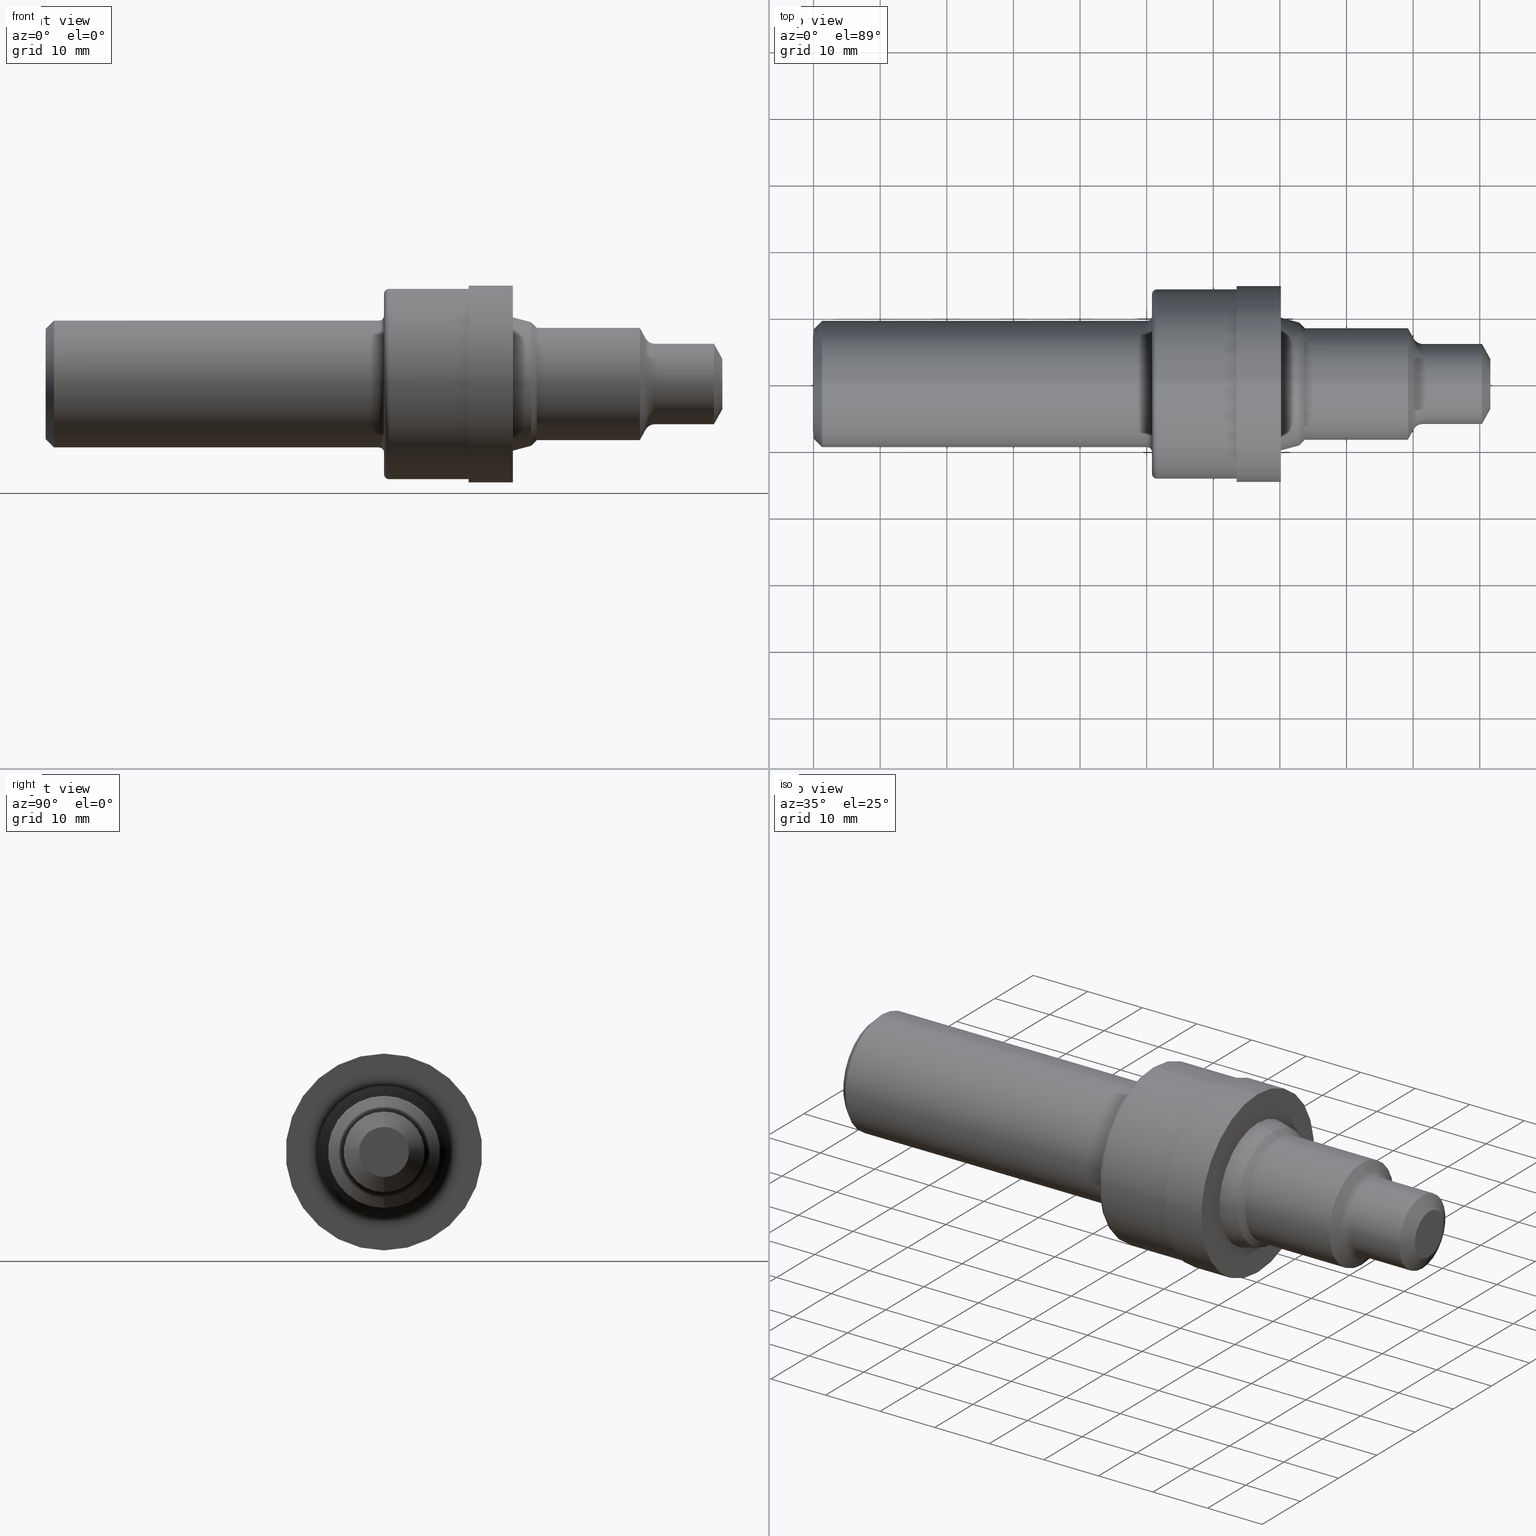
[diagram: canonical four-view strip — front | top / right | iso, engineering-drawing reading convention]
A machine part, canonical four-view strip (front | top / right | iso — engineering-drawing reading convention). The complete STEP part file that produces these views, byte-faithful:
ISO-10303-21;
HEADER;
FILE_DESCRIPTION (( 'STEP AP214' ),
    '1' );
FILE_NAME ('C-08-2-ROUGH-X8.STEP',
    '2019-07-12T18:29:25',
    ( '' ),
    ( '' ),
    'SwSTEP 2.0',
    'SolidWorks 2018',
    '' );
FILE_SCHEMA (( 'AUTOMOTIVE_DESIGN' ));
ENDSEC;

DATA;
#1 = LINE ( 'NONE', #33, #771 ) ;
#2 = CYLINDRICAL_SURFACE ( 'NONE', #157, 0.2379000000000000004 ) ;
#3 = ORIENTED_EDGE ( 'NONE', *, *, #105, .F. ) ;
#4 = DIRECTION ( 'NONE',  ( 0.0000000000000000000, 0.0000000000000000000, 1.000000000000000000 ) ) ;
#5 = ORIENTED_EDGE ( 'NONE', *, *, #350, .T. ) ;
#6 = PRESENTATION_LAYER_ASSIGNMENT (  '', '', ( #117 ) ) ;
#7 =( NAMED_UNIT ( * ) SI_UNIT ( $, .STERADIAN. ) SOLID_ANGLE_UNIT ( ) );
#8 = AXIS2_PLACEMENT_3D ( 'NONE', #412, #89, #158 ) ;
#9 = DIRECTION ( 'NONE',  ( 0.0000000000000000000, 0.0000000000000000000, 1.000000000000000000 ) ) ;
#10 = EDGE_CURVE ( 'NONE', #812, #455, #530, .T. ) ;
#11 = CIRCLE ( 'NONE', #163, 0.06200000000000001343 ) ;
#12 = VECTOR ( 'NONE', #186, 39.37007874015748854 ) ;
#13 = CARTESIAN_POINT ( 'NONE',  ( 3.512000000000000011, 4.059704139173475521E-17, -0.3314999999999999059 ) ) ;
#14 = ORIENTED_EDGE ( 'NONE', *, *, #599, .F. ) ;
#15 = CARTESIAN_POINT ( 'NONE',  ( 2.762000000000000011, 0.0000000000000000000, 0.5815000000000000169 ) ) ;
#16 = EDGE_LOOP ( 'NONE', ( #435, #323, #146, #344 ) ) ;
#17 = EDGE_LOOP ( 'NONE', ( #436, #134 ) ) ;
#18 = DIRECTION ( 'NONE',  ( -1.000000000000000000, -0.0000000000000000000, -0.0000000000000000000 ) ) ;
#19 = CARTESIAN_POINT ( 'NONE',  ( 3.546177696391410894, 0.0000000000000000000, 0.0000000000000000000 ) ) ;
#20 = APPLICATION_CONTEXT ( 'automotive_design' ) ;
#21 = AXIS2_PLACEMENT_3D ( 'NONE', #512, #73, #388 ) ;
#22 = DIRECTION ( 'NONE',  ( 0.0000000000000000000, 0.0000000000000000000, 1.000000000000000000 ) ) ;
#23 = DIRECTION ( 'NONE',  ( 1.000000000000000000, 0.0000000000000000000, 0.0000000000000000000 ) ) ;
#24 = UNCERTAINTY_MEASURE_WITH_UNIT (LENGTH_MEASURE( 1.000000000000000082E-05 ), #357, 'distance_accuracy_value', 'NONE');
#25 = VECTOR ( 'NONE', #542, 39.37007874015748143 ) ;
#26 = LINE ( 'NONE', #777, #661 ) ;
#27 = ORIENTED_EDGE ( 'NONE', *, *, #139, .T. ) ;
#28 = VERTEX_POINT ( 'NONE', #66 ) ;
#29 = MECHANICAL_DESIGN_GEOMETRIC_PRESENTATION_REPRESENTATION (  '', ( #420 ), #714 ) ;
#30 = CARTESIAN_POINT ( 'NONE',  ( 2.869999999999999662, 4.647911103384329788E-17, -0.3650614872174387515 ) ) ;
#31 = EDGE_CURVE ( 'NONE', #664, #215, #213, .T. ) ;
#32 = CARTESIAN_POINT ( 'NONE',  ( 4.000000000000000000, 0.0000000000000000000, 0.0000000000000000000 ) ) ;
#33 = CARTESIAN_POINT ( 'NONE',  ( 0.0000000000000000000, 4.059704139173475521E-17, -0.3314999999999999059 ) ) ;
#34 = ADVANCED_FACE ( 'NONE', ( #447, #749 ), #708, .F. ) ;
#35 = CIRCLE ( 'NONE', #488, 0.2378999999999999726 ) ;
#36 = DIRECTION ( 'NONE',  ( 0.0000000000000000000, 0.0000000000000000000, 1.000000000000000000 ) ) ;
#37 = FACE_OUTER_BOUND ( 'NONE', #784, .T. ) ;
#38 = DIRECTION ( 'NONE',  ( -1.000000000000000000, -0.0000000000000000000, -0.0000000000000000000 ) ) ;
#39 = FACE_OUTER_BOUND ( 'NONE', #248, .T. ) ;
#40 = AXIS2_PLACEMENT_3D ( 'NONE', #670, #658, #468 ) ;
#41 = ADVANCED_FACE ( 'NONE', ( #598 ), #304, .F. ) ;
#42 = ORIENTED_EDGE ( 'NONE', *, *, #310, .T. ) ;
#43 = ORIENTED_EDGE ( 'NONE', *, *, #225, .T. ) ;
#44 = DIRECTION ( 'NONE',  ( -1.000000000000000000, -0.0000000000000000000, -0.0000000000000000000 ) ) ;
#45 = DIRECTION ( 'NONE',  ( 0.0000000000000000000, 0.0000000000000000000, 1.000000000000000000 ) ) ;
#46 = ADVANCED_FACE ( 'NONE', ( #39 ), #364, .T. ) ;
#47 = DIRECTION ( 'NONE',  ( -1.000000000000000000, -0.0000000000000000000, -0.0000000000000000000 ) ) ;
#48 = TOROIDAL_SURFACE ( 'NONE', #657, 0.5324999999999999734, 0.02999999999999998848 ) ;
#49 = EDGE_CURVE ( 'NONE', #264, #675, #340, .T. ) ;
#50 = VERTEX_POINT ( 'NONE', #214 ) ;
#51 = DIRECTION ( 'NONE',  ( 0.0000000000000000000, 0.0000000000000000000, 1.000000000000000000 ) ) ;
#52 = AXIS2_PLACEMENT_3D ( 'NONE', #32, #486, #115 ) ;
#53 = ORIENTED_EDGE ( 'NONE', *, *, #467, .T. ) ;
#54 = DIRECTION ( 'NONE',  ( -1.000000000000000000, -0.0000000000000000000, -0.0000000000000000000 ) ) ;
#55 = DIRECTION ( 'NONE',  ( 0.0000000000000000000, 0.0000000000000000000, 1.000000000000000000 ) ) ;
#56 = CARTESIAN_POINT ( 'NONE',  ( 2.000000000000000000, 6.704941225331759370E-17, -0.5324999999999999734 ) ) ;
#57 = AXIS2_PLACEMENT_3D ( 'NONE', #469, #531, #151 ) ;
#58 = FACE_OUTER_BOUND ( 'NONE', #617, .T. ) ;
#59 = EDGE_CURVE ( 'NONE', #682, #28, #315, .T. ) ;
#60 = ORIENTED_EDGE ( 'NONE', *, *, #841, .T. ) ;
#61 = ORIENTED_EDGE ( 'NONE', *, *, #507, .F. ) ;
#62 = DIMENSIONAL_EXPONENTS ( 1.000000000000000000, 0.0000000000000000000, 0.0000000000000000000, 0.0000000000000000000, 0.0000000000000000000, 0.0000000000000000000, 0.0000000000000000000 ) ;
#63 = CARTESIAN_POINT ( 'NONE',  ( 3.600404118234053374, 0.0000000000000000000, 0.0000000000000000000 ) ) ;
#64 = DIRECTION ( 'NONE',  ( -0.0000000000000000000, 0.0000000000000000000, 1.000000000000000000 ) ) ;
#65 = LENGTH_MEASURE_WITH_UNIT ( LENGTH_MEASURE( 0.02539999999999999897 ), #376 );
#66 = CARTESIAN_POINT ( 'NONE',  ( 2.500000000000000000, 6.888638245203861944E-17, -0.5625000000000001110 ) ) ;
#67 = FACE_OUTER_BOUND ( 'NONE', #416, .T. ) ;
#68 = FACE_OUTER_BOUND ( 'NONE', #205, .T. ) ;
#69 = CARTESIAN_POINT ( 'NONE',  ( 0.0000000000000000000, 0.0000000000000000000, -0.3248500000000001386 ) ) ;
#70 = ORIENTED_EDGE ( 'NONE', *, *, #479, .T. ) ;
#71 = EDGE_LOOP ( 'NONE', ( #671, #203, #701, #176 ) ) ;
#72 = ORIENTED_EDGE ( 'NONE', *, *, #535, .T. ) ;
#73 = DIRECTION ( 'NONE',  ( -1.000000000000000000, -0.0000000000000000000, -0.0000000000000000000 ) ) ;
#74 = DIRECTION ( 'NONE',  ( 1.000000000000000000, 0.0000000000000000000, 0.0000000000000000000 ) ) ;
#75 = CARTESIAN_POINT ( 'NONE',  ( 0.0000000000000000000, 2.913434735171553361E-17, -0.2379000000000000004 ) ) ;
#76 = EDGE_CURVE ( 'NONE', #820, #576, #192, .T. ) ;
#77 =( CONVERSION_BASED_UNIT ( 'INCH', #359 ) LENGTH_UNIT ( ) NAMED_UNIT ( #439 ) );
#78 = DIRECTION ( 'NONE',  ( -1.000000000000000000, -0.0000000000000000000, -0.0000000000000000000 ) ) ;
#79 = DIRECTION ( 'NONE',  ( 0.0000000000000000000, 0.0000000000000000000, 1.000000000000000000 ) ) ;
#80 = FACE_OUTER_BOUND ( 'NONE', #554, .T. ) ;
#81 = ORIENTED_EDGE ( 'NONE', *, *, #627, .F. ) ;
#82 = AXIS2_PLACEMENT_3D ( 'NONE', #330, #470, #4 ) ;
#83 = CARTESIAN_POINT ( 'NONE',  ( 2.500000000000000000, 0.0000000000000000000, 0.5625000000000000000 ) ) ;
#84 = DIRECTION ( 'NONE',  ( -1.000000000000000000, -0.0000000000000000000, -0.0000000000000000000 ) ) ;
#85 = DIRECTION ( 'NONE',  ( 0.0000000000000000000, 0.0000000000000000000, 1.000000000000000000 ) ) ;
#86 = DIRECTION ( 'NONE',  ( 0.0000000000000000000, 0.0000000000000000000, 1.000000000000000000 ) ) ;
#87 = DIRECTION ( 'NONE',  ( 0.0000000000000000000, 0.0000000000000000000, -1.000000000000000000 ) ) ;
#88 = CIRCLE ( 'NONE', #131, 0.3314999999999999059 ) ;
#89 = DIRECTION ( 'NONE',  ( -1.000000000000000000, -0.0000000000000000000, -0.0000000000000000000 ) ) ;
#90 = DIRECTION ( 'NONE',  ( -1.000000000000000000, -0.0000000000000000000, -0.0000000000000000000 ) ) ;
#91 = FACE_OUTER_BOUND ( 'NONE', #741, .T. ) ;
#92 = DIRECTION ( 'NONE',  ( -1.000000000000000000, -0.0000000000000000000, -0.0000000000000000000 ) ) ;
#93 = EDGE_LOOP ( 'NONE', ( #249, #156, #226, #185 ) ) ;
#94 = ORIENTED_EDGE ( 'NONE', *, *, #238, .T. ) ;
#95 = ORIENTED_EDGE ( 'NONE', *, *, #139, .F. ) ;
#96 = EDGE_CURVE ( 'NONE', #789, #509, #425, .T. ) ;
#97 = AXIS2_PLACEMENT_3D ( 'NONE', #326, #136, #454 ) ;
#98 = CARTESIAN_POINT ( 'NONE',  ( 3.546177696391410894, 0.0000000000000000000, 0.0000000000000000000 ) ) ;
#99 = DIRECTION ( 'NONE',  ( 0.0000000000000000000, 0.0000000000000000000, 1.000000000000000000 ) ) ;
#100 = DIRECTION ( 'NONE',  ( 0.0000000000000000000, 0.0000000000000000000, 1.000000000000000000 ) ) ;
#101 = LINE ( 'NONE', #644, #491 ) ;
#102 = VECTOR ( 'NONE', #92, 39.37007874015748143 ) ;
#103 = EDGE_LOOP ( 'NONE', ( #504, #484, #821, #567 ) ) ;
#104 = CARTESIAN_POINT ( 'NONE',  ( 0.05000000000000000278, 4.590588526603853748E-17, 0.3748500000000000165 ) ) ;
#105 = EDGE_CURVE ( 'NONE', #682, #286, #172, .T. ) ;
#106 = DIRECTION ( 'NONE',  ( -1.000000000000000000, -0.0000000000000000000, -0.0000000000000000000 ) ) ;
#107 = DIRECTION ( 'NONE',  ( 0.0000000000000000000, 0.0000000000000000000, 1.000000000000000000 ) ) ;
#108 = ADVANCED_FACE ( 'NONE', ( #292, #80 ), #281, .F. ) ;
#109 = CIRCLE ( 'NONE', #353, 0.03000000000000002318 ) ;
#110 = CARTESIAN_POINT ( 'NONE',  ( 0.0000000000000000000, 0.0000000000000000000, 0.5815000000000000169 ) ) ;
#111 = AXIS2_PLACEMENT_3D ( 'NONE', #152, #280, #667 ) ;
#112 = ORIENTED_EDGE ( 'NONE', *, *, #704, .F. ) ;
#113 = DIRECTION ( 'NONE',  ( 0.0000000000000000000, 0.0000000000000000000, 1.000000000000000000 ) ) ;
#114 = ORIENTED_EDGE ( 'NONE', *, *, #219, .F. ) ;
#115 = DIRECTION ( 'NONE',  ( 0.0000000000000000000, 0.0000000000000000000, 1.000000000000000000 ) ) ;
#116 = DIRECTION ( 'NONE',  ( -1.000000000000000000, -0.0000000000000000000, -0.0000000000000000000 ) ) ;
#117 = STYLED_ITEM ( 'NONE', ( #606 ), #167 ) ;
#118 = DIRECTION ( 'NONE',  ( 0.0000000000000000000, 0.0000000000000000000, 1.000000000000000000 ) ) ;
#119 = DIMENSIONAL_EXPONENTS ( 1.000000000000000000, 0.0000000000000000000, 0.0000000000000000000, 0.0000000000000000000, 0.0000000000000000000, 0.0000000000000000000, 0.0000000000000000000 ) ;
#120 = CIRCLE ( 'NONE', #477, 0.5324999999999999734 ) ;
#121 = EDGE_CURVE ( 'NONE', #534, #286, #808, .T. ) ;
#122 = LINE ( 'NONE', #300, #596 ) ;
#123 = ORIENTED_EDGE ( 'NONE', *, *, #817, .T. ) ;
#124 = ADVANCED_FACE ( 'NONE', ( #837 ), #271, .T. ) ;
#125 = VERTEX_POINT ( 'NONE', #409 ) ;
#126 = DIRECTION ( 'NONE',  ( 1.000000000000000000, 0.0000000000000000000, 0.0000000000000000000 ) ) ;
#127 = AXIS2_PLACEMENT_3D ( 'NONE', #835, #591, #451 ) ;
#128 = CARTESIAN_POINT ( 'NONE',  ( 2.761999999999999567, 0.0000000000000000000, 0.0000000000000000000 ) ) ;
#129 = PRESENTATION_STYLE_ASSIGNMENT (( #731 ) ) ;
#130 = FACE_OUTER_BOUND ( 'NONE', #366, .T. ) ;
#131 = AXIS2_PLACEMENT_3D ( 'NONE', #220, #410, #301 ) ;
#132 = CIRCLE ( 'NONE', #827, 0.3248500000000001386 ) ;
#133 = ADVANCED_FACE ( 'NONE', ( #773 ), #453, .T. ) ;
#134 = ORIENTED_EDGE ( 'NONE', *, *, #49, .T. ) ;
#135 = VERTEX_POINT ( 'NONE', #603 ) ;
#136 = DIRECTION ( 'NONE',  ( -1.000000000000000000, -0.0000000000000000000, -0.0000000000000000000 ) ) ;
#137 = CARTESIAN_POINT ( 'NONE',  ( 3.600404118234053374, 3.672715750642912518E-17, -0.2998999999999999999 ) ) ;
#138 = PLANE ( 'NONE',  #735 ) ;
#139 = EDGE_CURVE ( 'NONE', #415, #456, #132, .T. ) ;
#140 =( LENGTH_UNIT ( ) NAMED_UNIT ( * ) SI_UNIT ( $, .METRE. ) );
#141 = DIRECTION ( 'NONE',  ( -0.4848096202463347826, 1.071100224819458088E-16, -0.8746197071393970734 ) ) ;
#142 = CIRCLE ( 'NONE', #177, 0.3650614872174387515 ) ;
#143 = APPLICATION_PROTOCOL_DEFINITION ( 'draft international standard', 'automotive_design', 1998, #210 ) ;
#144 = FACE_BOUND ( 'NONE', #295, .T. ) ;
#145 = DIRECTION ( 'NONE',  ( 1.000000000000000000, 0.0000000000000000000, 0.0000000000000000000 ) ) ;
#146 = ORIENTED_EDGE ( 'NONE', *, *, #259, .F. ) ;
#147 = AXIS2_PLACEMENT_3D ( 'NONE', #230, #23, #734 ) ;
#148 = ORIENTED_EDGE ( 'NONE', *, *, #715, .T. ) ;
#149 = AXIS2_PLACEMENT_3D ( 'NONE', #553, #236, #240 ) ;
#150 = DIRECTION ( 'NONE',  ( 0.0000000000000000000, -1.000000000000000000, 0.0000000000000000000 ) ) ;
#151 = DIRECTION ( 'NONE',  ( 0.0000000000000000000, 0.0000000000000000000, 1.000000000000000000 ) ) ;
#152 = CARTESIAN_POINT ( 'NONE',  ( 0.05000000000000000278, 0.0000000000000000000, 0.0000000000000000000 ) ) ;
#153 = EDGE_LOOP ( 'NONE', ( #272, #95, #42, #555 ) ) ;
#154 = ORIENTED_EDGE ( 'NONE', *, *, #76, .F. ) ;
#155 = CARTESIAN_POINT ( 'NONE',  ( 0.0000000000000000000, 0.0000000000000000000, 0.0000000000000000000 ) ) ;
#156 = ORIENTED_EDGE ( 'NONE', *, *, #490, .T. ) ;
#157 = AXIS2_PLACEMENT_3D ( 'NONE', #767, #499, #118 ) ;
#158 = DIRECTION ( 'NONE',  ( 0.0000000000000000000, 0.0000000000000000000, 1.000000000000000000 ) ) ;
#159 = MECHANICAL_DESIGN_GEOMETRIC_PRESENTATION_REPRESENTATION (  '', ( #117 ), #231 ) ;
#160 = CIRCLE ( 'NONE', #389, 0.5625000000000000000 ) ;
#161 = FACE_OUTER_BOUND ( 'NONE', #93, .T. ) ;
#162 = CARTESIAN_POINT ( 'NONE',  ( 0.0000000000000000000, 0.0000000000000000000, 0.5624999999999998890 ) ) ;
#163 = AXIS2_PLACEMENT_3D ( 'NONE', #137, #498, #641 ) ;
#164 = ORIENTED_EDGE ( 'NONE', *, *, #845, .F. ) ;
#165 = DIRECTION ( 'NONE',  ( -1.000000000000000000, -0.0000000000000000000, -0.0000000000000000000 ) ) ;
#166 = EDGE_CURVE ( 'NONE', #524, #125, #630, .T. ) ;
#167 = MANIFOLD_SOLID_BREP ( 'Body', #634 ) ;
#168 = DIRECTION ( 'NONE',  ( -0.7071067811865467956, 0.0000000000000000000, 0.7071067811865482389 ) ) ;
#169 = DIRECTION ( 'NONE',  ( -1.000000000000000000, -0.0000000000000000000, -0.0000000000000000000 ) ) ;
#170 = AXIS2_PLACEMENT_3D ( 'NONE', #418, #414, #223 ) ;
#171 = LINE ( 'NONE', #104, #668 ) ;
#172 = LINE ( 'NONE', #162, #102 ) ;
#173 = ADVANCED_FACE ( 'NONE', ( #58 ), #382, .T. ) ;
#174 = ORIENTED_EDGE ( 'NONE', *, *, #569, .T. ) ;
#175 = DIRECTION ( 'NONE',  ( 0.0000000000000000000, 0.0000000000000000000, 1.000000000000000000 ) ) ;
#176 = ORIENTED_EDGE ( 'NONE', *, *, #121, .F. ) ;
#177 = AXIS2_PLACEMENT_3D ( 'NONE', #349, #537, #406 ) ;
#178 = EDGE_CURVE ( 'NONE', #673, #565, #722, .T. ) ;
#179 = EDGE_CURVE ( 'NONE', #125, #455, #681, .T. ) ;
#180 = CARTESIAN_POINT ( 'NONE',  ( 0.0000000000000000000, 0.0000000000000000000, 0.0000000000000000000 ) ) ;
#181 = CIRCLE ( 'NONE', #815, 0.4048500000000005428 ) ;
#182 = CIRCLE ( 'NONE', #341, 0.3748500000000005161 ) ;
#183 = DIRECTION ( 'NONE',  ( 0.0000000000000000000, 0.0000000000000000000, 1.000000000000000000 ) ) ;
#184 = EDGE_LOOP ( 'NONE', ( #324, #5, #262, #732 ) ) ;
#185 = ORIENTED_EDGE ( 'NONE', *, *, #776, .F. ) ;
#186 = DIRECTION ( 'NONE',  ( -0.4848096202463355042, 0.0000000000000000000, 0.8746197071393965183 ) ) ;
#187 = CARTESIAN_POINT ( 'NONE',  ( 2.761999999999999567, 0.0000000000000000000, 0.0000000000000000000 ) ) ;
#188 = AXIS2_PLACEMENT_3D ( 'NONE', #212, #18, #607 ) ;
#189 = CONICAL_SURFACE ( 'NONE', #334, 0.3650614872174387515, 0.2617993877991496854 ) ;
#190 = ADVANCED_FACE ( 'NONE', ( #519 ), #374, .T. ) ;
#191 = CONICAL_SURFACE ( 'NONE', #709, 0.2698418035447271435, 1.064650843716542727 ) ;
#192 = CIRCLE ( 'NONE', #770, 0.2378999999999999726 ) ;
#193 = DIRECTION ( 'NONE',  ( -0.4848096202463347826, 0.0000000000000000000, 0.8746197071393970734 ) ) ;
#194 = ORIENTED_EDGE ( 'NONE', *, *, #492, .F. ) ;
#195 = ORIENTED_EDGE ( 'NONE', *, *, #764, .F. ) ;
#196 = DIRECTION ( 'NONE',  ( 0.0000000000000000000, 0.0000000000000000000, 1.000000000000000000 ) ) ;
#197 = DIRECTION ( 'NONE',  ( 0.0000000000000000000, 0.0000000000000000000, 1.000000000000000000 ) ) ;
#198 = CARTESIAN_POINT ( 'NONE',  ( 1.969999999999999973, 0.0000000000000000000, 0.0000000000000000000 ) ) ;
#199 = CIRCLE ( 'NONE', #571, 0.5324999999999999734 ) ;
#200 = LINE ( 'NONE', #445, #12 ) ;
#201 = ORIENTED_EDGE ( 'NONE', *, *, #720, .F. ) ;
#202 = AXIS2_PLACEMENT_3D ( 'NONE', #649, #126, #778 ) ;
#203 = ORIENTED_EDGE ( 'NONE', *, *, #704, .T. ) ;
#204 = CARTESIAN_POINT ( 'NONE',  ( 3.600404118234053374, 0.0000000000000000000, 0.2998999999999999999 ) ) ;
#205 = EDGE_LOOP ( 'NONE', ( #201, #386 ) ) ;
#206 = DIRECTION ( 'NONE',  ( -1.000000000000000000, -0.0000000000000000000, -0.0000000000000000000 ) ) ;
#207 = DIRECTION ( 'NONE',  ( 0.0000000000000000000, 0.0000000000000000000, 1.000000000000000000 ) ) ;
#208 = EDGE_CURVE ( 'NONE', #565, #675, #211, .T. ) ;
#209 = DIRECTION ( 'NONE',  ( 0.0000000000000000000, 0.0000000000000000000, -1.000000000000000000 ) ) ;
#210 = APPLICATION_CONTEXT ( 'automotive_design' ) ;
#211 = LINE ( 'NONE', #110, #615 ) ;
#212 = CARTESIAN_POINT ( 'NONE',  ( 1.969999999999999973, 0.0000000000000000000, 0.0000000000000000000 ) ) ;
#213 = LINE ( 'NONE', #577, #463 ) ;
#214 = CARTESIAN_POINT ( 'NONE',  ( 3.950000000000000178, 0.0000000000000000000, 0.2379000000000000004 ) ) ;
#215 = VERTEX_POINT ( 'NONE', #360 ) ;
#216 = ORIENTED_EDGE ( 'NONE', *, *, #219, .T. ) ;
#217 = DIRECTION ( 'NONE',  ( 0.0000000000000000000, -1.000000000000000000, 0.0000000000000000000 ) ) ;
#218 = CARTESIAN_POINT ( 'NONE',  ( 3.546177696391410894, 3.304609009871990605E-17, -0.2698418035447271435 ) ) ;
#219 = EDGE_CURVE ( 'NONE', #833, #493, #290, .T. ) ;
#220 = CARTESIAN_POINT ( 'NONE',  ( 2.903561487217438231, 0.0000000000000000000, 0.0000000000000000000 ) ) ;
#221 = VECTOR ( 'NONE', #736, 39.37007874015748143 ) ;
#222 = PRODUCT_CONTEXT ( 'NONE', #210, 'mechanical' ) ;
#223 = DIRECTION ( 'NONE',  ( 0.0000000000000000000, 0.0000000000000000000, 1.000000000000000000 ) ) ;
#224 = EDGE_LOOP ( 'NONE', ( #633, #752, #194, #521 ) ) ;
#225 = EDGE_CURVE ( 'NONE', #286, #684, #740, .T. ) ;
#226 = ORIENTED_EDGE ( 'NONE', *, *, #841, .F. ) ;
#227 = CARTESIAN_POINT ( 'NONE',  ( 2.029999999999999805, 0.0000000000000000000, 0.0000000000000000000 ) ) ;
#228 = ORIENTED_EDGE ( 'NONE', *, *, #266, .T. ) ;
#229 = CARTESIAN_POINT ( 'NONE',  ( 2.869999999999999662, 0.0000000000000000000, 0.0000000000000000000 ) ) ;
#230 = CARTESIAN_POINT ( 'NONE',  ( 2.000000000000000000, 0.5324999999999999734, 0.0000000000000000000 ) ) ;
#231 =( GEOMETRIC_REPRESENTATION_CONTEXT ( 3 ) GLOBAL_UNCERTAINTY_ASSIGNED_CONTEXT ( ( #24 ) ) GLOBAL_UNIT_ASSIGNED_CONTEXT ( ( #357, #632, #745 ) ) REPRESENTATION_CONTEXT ( 'NONE', 'WORKASPACE' ) );
#232 = CARTESIAN_POINT ( 'NONE',  ( 2.000000000000000000, 0.0000000000000000000, 0.0000000000000000000 ) ) ;
#233 = ORIENTED_EDGE ( 'NONE', *, *, #365, .T. ) ;
#234 = AXIS2_PLACEMENT_3D ( 'NONE', #557, #626, #36 ) ;
#235 = ORIENTED_EDGE ( 'NONE', *, *, #796, .F. ) ;
#236 = DIRECTION ( 'NONE',  ( -1.000000000000000000, -0.0000000000000000000, -0.0000000000000000000 ) ) ;
#237 = ORIENTED_EDGE ( 'NONE', *, *, #507, .T. ) ;
#238 = EDGE_CURVE ( 'NONE', #135, #765, #122, .T. ) ;
#239 = ADVANCED_FACE ( 'NONE', ( #37 ), #543, .T. ) ;
#240 = DIRECTION ( 'NONE',  ( 0.0000000000000000000, 0.0000000000000000000, 1.000000000000000000 ) ) ;
#241 = CARTESIAN_POINT ( 'NONE',  ( 2.762000000000000011, 0.0000000000000000000, 0.0000000000000000000 ) ) ;
#242 =( NAMED_UNIT ( * ) SI_UNIT ( $, .STERADIAN. ) SOLID_ANGLE_UNIT ( ) );
#243 = ADVANCED_FACE ( 'NONE', ( #748 ), #191, .T. ) ;
#244 = CARTESIAN_POINT ( 'NONE',  ( 2.903561487217438231, 0.0000000000000000000, 0.0000000000000000000 ) ) ;
#245 = CIRCLE ( 'NONE', #604, 0.2698418035447271435 ) ;
#246 = CYLINDRICAL_SURFACE ( 'NONE', #127, 0.3748500000000002386 ) ;
#247 = ORIENTED_EDGE ( 'NONE', *, *, #672, .F. ) ;
#248 = EDGE_LOOP ( 'NONE', ( #342, #94, #547, #801 ) ) ;
#249 = ORIENTED_EDGE ( 'NONE', *, *, #674, .T. ) ;
#250 = AXIS2_PLACEMENT_3D ( 'NONE', #683, #689, #289 ) ;
#251 = EDGE_CURVE ( 'NONE', #438, #702, #446, .T. ) ;
#252 = LINE ( 'NONE', #597, #373 ) ;
#253 = CARTESIAN_POINT ( 'NONE',  ( 2.029999999999999805, 0.0000000000000000000, 0.5624999999999998890 ) ) ;
#254 = CYLINDRICAL_SURFACE ( 'NONE', #21, 0.5624999999999998890 ) ;
#255 = ORIENTED_EDGE ( 'NONE', *, *, #678, .T. ) ;
#256 = ORIENTED_EDGE ( 'NONE', *, *, #674, .F. ) ;
#257 = AXIS2_PLACEMENT_3D ( 'NONE', #561, #754, #368 ) ;
#258 = CIRCLE ( 'NONE', #40, 0.2698418035447271435 ) ;
#259 = EDGE_CURVE ( 'NONE', #524, #438, #529, .T. ) ;
#260 = CIRCLE ( 'NONE', #653, 0.3748500000000000165 ) ;
#261 = DIRECTION ( 'NONE',  ( 0.0000000000000000000, 0.0000000000000000000, 1.000000000000000000 ) ) ;
#262 = ORIENTED_EDGE ( 'NONE', *, *, #31, .T. ) ;
#263 = ORIENTED_EDGE ( 'NONE', *, *, #10, .T. ) ;
#264 = VERTEX_POINT ( 'NONE', #834 ) ;
#265 = DIRECTION ( 'NONE',  ( -1.000000000000000000, -0.0000000000000000000, -0.0000000000000000000 ) ) ;
#266 = EDGE_CURVE ( 'NONE', #493, #833, #329, .T. ) ;
#267 = DIRECTION ( 'NONE',  ( 0.0000000000000000000, 0.0000000000000000000, 1.000000000000000000 ) ) ;
#268 = CARTESIAN_POINT ( 'NONE',  ( 4.000000000000000000, 2.361104407921024020E-17, -0.1476976122364287436 ) ) ;
#269 = CONICAL_SURFACE ( 'NONE', #580, 0.1476976122364287436, 1.064650843716543616 ) ;
#270 = CYLINDRICAL_SURFACE ( 'NONE', #768, 0.5815000000000000169 ) ;
#271 = CONICAL_SURFACE ( 'NONE', #437, 0.3314999999999999059, 0.7853981633974492782 ) ;
#272 = ORIENTED_EDGE ( 'NONE', *, *, #803, .F. ) ;
#273 = DIRECTION ( 'NONE',  ( 0.0000000000000000000, -1.224646799147352221E-16, 1.000000000000000000 ) ) ;
#274 = ORIENTED_EDGE ( 'NONE', *, *, #460, .F. ) ;
#275 = DIRECTION ( 'NONE',  ( -1.000000000000000000, -0.0000000000000000000, -0.0000000000000000000 ) ) ;
#276 = AXIS2_PLACEMENT_3D ( 'NONE', #614, #494, #548 ) ;
#277 = DIRECTION ( 'NONE',  ( 0.0000000000000000000, 0.0000000000000000000, -1.000000000000000000 ) ) ;
#278 = EDGE_CURVE ( 'NONE', #475, #789, #200, .T. ) ;
#279 = CARTESIAN_POINT ( 'NONE',  ( 0.0000000000000000000, 0.0000000000000000000, 0.0000000000000000000 ) ) ;
#280 = DIRECTION ( 'NONE',  ( 1.000000000000000000, 0.0000000000000000000, 0.0000000000000000000 ) ) ;
#281 = PLANE ( 'NONE',  #147 ) ;
#282 = FACE_OUTER_BOUND ( 'NONE', #71, .T. ) ;
#283 = VECTOR ( 'NONE', #168, 39.37007874015748143 ) ;
#284 = CARTESIAN_POINT ( 'NONE',  ( 2.903561487217438231, 0.0000000000000000000, 0.0000000000000000000 ) ) ;
#285 = EDGE_LOOP ( 'NONE', ( #385, #316, #724, #727 ) ) ;
#286 = VERTEX_POINT ( 'NONE', #253 ) ;
#287 = CARTESIAN_POINT ( 'NONE',  ( 1.969999999999999973, 0.0000000000000000000, 0.3748500000000005161 ) ) ;
#288 = FACE_OUTER_BOUND ( 'NONE', #523, .T. ) ;
#289 = DIRECTION ( 'NONE',  ( 0.0000000000000000000, 0.0000000000000000000, 1.000000000000000000 ) ) ;
#290 = CIRCLE ( 'NONE', #250, 0.1476976122364287436 ) ;
#291 = CARTESIAN_POINT ( 'NONE',  ( 4.000000000000000000, 0.0000000000000000000, 0.0000000000000000000 ) ) ;
#292 = FACE_BOUND ( 'NONE', #790, .T. ) ;
#293 = ORIENTED_EDGE ( 'NONE', *, *, #328, .F. ) ;
#294 = CARTESIAN_POINT ( 'NONE',  ( 2.869999999999999662, 0.0000000000000000000, 0.3650614872174387515 ) ) ;
#295 = EDGE_LOOP ( 'NONE', ( #646, #263 ) ) ;
#296 = ADVANCED_FACE ( 'NONE', ( #462 ), #351, .T. ) ;
#297 = CARTESIAN_POINT ( 'NONE',  ( 2.029999999999999805, 0.0000000000000000000, 0.0000000000000000000 ) ) ;
#298 = DIRECTION ( 'NONE',  ( -0.9659258262890682012, 0.0000000000000000000, 0.2588190451025210170 ) ) ;
#299 = ADVANCED_FACE ( 'NONE', ( #161 ), #2, .T. ) ;
#300 = CARTESIAN_POINT ( 'NONE',  ( 0.0000000000000000000, 4.590588526603856213E-17, -0.3748500000000002386 ) ) ;
#301 = DIRECTION ( 'NONE',  ( 0.0000000000000000000, 0.0000000000000000000, 1.000000000000000000 ) ) ;
#302 = FACE_OUTER_BOUND ( 'NONE', #619, .T. ) ;
#303 = FILL_AREA_STYLE ('',( #694 ) ) ;
#304 = TOROIDAL_SURFACE ( 'NONE', #757, 0.2998999999999999999, 0.06200000000000001343 ) ;
#305 = VERTEX_POINT ( 'NONE', #56 ) ;
#306 = EDGE_LOOP ( 'NONE', ( #393, #511, #70, #711 ) ) ;
#307 = ADVANCED_FACE ( 'NONE', ( #424 ), #270, .T. ) ;
#308 = AXIS2_PLACEMENT_3D ( 'NONE', #730, #517, #79 ) ;
#309 = DIRECTION ( 'NONE',  ( -1.000000000000000000, -0.0000000000000000000, -0.0000000000000000000 ) ) ;
#310 = EDGE_CURVE ( 'NONE', #415, #765, #26, .T. ) ;
#311 = DIRECTION ( 'NONE',  ( -0.7071067811865467956, 8.659560562354941486E-17, -0.7071067811865482389 ) ) ;
#312 = AXIS2_PLACEMENT_3D ( 'NONE', #155, #84, #336 ) ;
#313 = TOROIDAL_SURFACE ( 'NONE', #472, 0.2998999999999999999, 0.06200000000000001343 ) ;
#314 = VECTOR ( 'NONE', #141, 39.37007874015748143 ) ;
#315 = CIRCLE ( 'NONE', #593, 0.5625000000000000000 ) ;
#316 = ORIENTED_EDGE ( 'NONE', *, *, #251, .T. ) ;
#317 = ORIENTED_EDGE ( 'NONE', *, *, #660, .T. ) ;
#318 =( NAMED_UNIT ( * ) PLANE_ANGLE_UNIT ( ) SI_UNIT ( $, .RADIAN. ) );
#319 = EDGE_CURVE ( 'NONE', #664, #135, #182, .T. ) ;
#320 = CARTESIAN_POINT ( 'NONE',  ( 3.546177696391410894, 0.0000000000000000000, 0.2698418035447271435 ) ) ;
#321 = FACE_OUTER_BOUND ( 'NONE', #369, .T. ) ;
#322 = DIRECTION ( 'NONE',  ( 0.0000000000000000000, 0.0000000000000000000, 1.000000000000000000 ) ) ;
#323 = ORIENTED_EDGE ( 'NONE', *, *, #764, .T. ) ;
#324 = ORIENTED_EDGE ( 'NONE', *, *, #238, .F. ) ;
#325 = DIRECTION ( 'NONE',  ( 0.7071067811865483499, 0.0000000000000000000, -0.7071067811865466846 ) ) ;
#326 = CARTESIAN_POINT ( 'NONE',  ( 2.500000000000000000, 0.0000000000000000000, 0.0000000000000000000 ) ) ;
#327 = FACE_OUTER_BOUND ( 'NONE', #763, .T. ) ;
#328 = EDGE_CURVE ( 'NONE', #455, #812, #564, .T. ) ;
#329 = CIRCLE ( 'NONE', #637, 0.1476976122364287436 ) ;
#330 = CARTESIAN_POINT ( 'NONE',  ( 3.950000000000000178, 0.0000000000000000000, 0.0000000000000000000 ) ) ;
#331 = DIRECTION ( 'NONE',  ( -1.000000000000000000, -0.0000000000000000000, -0.0000000000000000000 ) ) ;
#332 = ORIENTED_EDGE ( 'NONE', *, *, #582, .T. ) ;
#333 = ORIENTED_EDGE ( 'NONE', *, *, #121, .T. ) ;
#334 = AXIS2_PLACEMENT_3D ( 'NONE', #379, #116, #183 ) ;
#335 = CARTESIAN_POINT ( 'NONE',  ( 1.969999999999999973, 0.0000000000000000000, 0.0000000000000000000 ) ) ;
#336 = DIRECTION ( 'NONE',  ( 0.0000000000000000000, 0.0000000000000000000, 1.000000000000000000 ) ) ;
#337 = UNCERTAINTY_MEASURE_WITH_UNIT (LENGTH_MEASURE( 1.000000000000000082E-05 ), #825, 'distance_accuracy_value', 'NONE');
#338 = CIRCLE ( 'NONE', #666, 0.5624999999999998890 ) ;
#339 = DIRECTION ( 'NONE',  ( -1.000000000000000000, -0.0000000000000000000, -0.0000000000000000000 ) ) ;
#340 = CIRCLE ( 'NONE', #308, 0.5815000000000000169 ) ;
#341 = AXIS2_PLACEMENT_3D ( 'NONE', #198, #781, #718 ) ;
#342 = ORIENTED_EDGE ( 'NONE', *, *, #319, .T. ) ;
#343 = CARTESIAN_POINT ( 'NONE',  ( 0.0000000000000000000, 0.0000000000000000000, 0.0000000000000000000 ) ) ;
#344 = ORIENTED_EDGE ( 'NONE', *, *, #817, .F. ) ;
#345 = AXIS2_PLACEMENT_3D ( 'NONE', #811, #165, #433 ) ;
#346 = AXIS2_PLACEMENT_3D ( 'NONE', #430, #496, #355 ) ;
#347 = DIRECTION ( 'NONE',  ( 0.0000000000000000000, 0.0000000000000000000, 1.000000000000000000 ) ) ;
#348 = VECTOR ( 'NONE', #843, 39.37007874015748854 ) ;
#349 = CARTESIAN_POINT ( 'NONE',  ( 2.869999999999999662, 0.0000000000000000000, 0.0000000000000000000 ) ) ;
#350 = EDGE_CURVE ( 'NONE', #135, #664, #508, .T. ) ;
#351 = CYLINDRICAL_SURFACE ( 'NONE', #679, 0.3314999999999999059 ) ;
#352 = APPLICATION_PROTOCOL_DEFINITION ( 'draft international standard', 'automotive_design', 1998, #20 ) ;
#353 = AXIS2_PLACEMENT_3D ( 'NONE', #791, #602, #273 ) ;
#354 = ORIENTED_EDGE ( 'NONE', *, *, #678, .F. ) ;
#355 = DIRECTION ( 'NONE',  ( 0.0000000000000000000, 0.0000000000000000000, 1.000000000000000000 ) ) ;
#356 = DIRECTION ( 'NONE',  ( -1.000000000000000000, -0.0000000000000000000, -0.0000000000000000000 ) ) ;
#357 =( CONVERSION_BASED_UNIT ( 'INCH', #830 ) LENGTH_UNIT ( ) NAMED_UNIT ( #119 ) );
#358 = DIRECTION ( 'NONE',  ( -1.000000000000000000, -0.0000000000000000000, -0.0000000000000000000 ) ) ;
#359 = LENGTH_MEASURE_WITH_UNIT ( LENGTH_MEASURE( 0.02539999999999999897 ), #140 );
#360 = CARTESIAN_POINT ( 'NONE',  ( 0.05000000000000000278, 4.590588526603853748E-17, 0.3748500000000000165 ) ) ;
#361 = ADVANCED_FACE ( 'NONE', ( #91 ), #779, .F. ) ;
#362 = VECTOR ( 'NONE', #193, 39.37007874015748143 ) ;
#363 = CARTESIAN_POINT ( 'NONE',  ( 3.950000000000000178, 0.0000000000000000000, 0.0000000000000000000 ) ) ;
#364 = CYLINDRICAL_SURFACE ( 'NONE', #716, 0.3748500000000002386 ) ;
#365 = EDGE_CURVE ( 'NONE', #833, #50, #829, .T. ) ;
#366 = EDGE_LOOP ( 'NONE', ( #690, #449, #703, #154 ) ) ;
#367 = EDGE_CURVE ( 'NONE', #215, #765, #260, .T. ) ;
#368 = DIRECTION ( 'NONE',  ( 0.0000000000000000000, 0.0000000000000000000, -1.000000000000000000 ) ) ;
#369 = EDGE_LOOP ( 'NONE', ( #663, #317, #588, #810 ) ) ;
#370 = ADVANCED_FACE ( 'NONE', ( #401 ), #254, .T. ) ;
#371 = CARTESIAN_POINT ( 'NONE',  ( 0.0000000000000000000, 0.0000000000000000000, 0.0000000000000000000 ) ) ;
#372 = CIRCLE ( 'NONE', #549, 0.02999999999999995379 ) ;
#373 = VECTOR ( 'NONE', #795, 39.37007874015748143 ) ;
#374 = TOROIDAL_SURFACE ( 'NONE', #574, 0.5324999999999999734, 0.02999999999999998848 ) ;
#375 = ORIENTED_EDGE ( 'NONE', *, *, #569, .F. ) ;
#376 =( LENGTH_UNIT ( ) NAMED_UNIT ( * ) SI_UNIT ( $, .METRE. ) );
#377 = ORIENTED_EDGE ( 'NONE', *, *, #278, .T. ) ;
#378 = ORIENTED_EDGE ( 'NONE', *, *, #612, .T. ) ;
#379 = CARTESIAN_POINT ( 'NONE',  ( 2.869999999999999662, 0.0000000000000000000, 0.0000000000000000000 ) ) ;
#380 = DIRECTION ( 'NONE',  ( -1.000000000000000000, -0.0000000000000000000, -0.0000000000000000000 ) ) ;
#381 = EDGE_CURVE ( 'NONE', #286, #534, #338, .T. ) ;
#382 = CYLINDRICAL_SURFACE ( 'NONE', #346, 0.3314999999999999059 ) ;
#383 = EDGE_LOOP ( 'NONE', ( #27, #742 ) ) ;
#384 = DIRECTION ( 'NONE',  ( 0.0000000000000000000, 0.0000000000000000000, 1.000000000000000000 ) ) ;
#385 = ORIENTED_EDGE ( 'NONE', *, *, #259, .T. ) ;
#386 = ORIENTED_EDGE ( 'NONE', *, *, #178, .F. ) ;
#387 = CARTESIAN_POINT ( 'NONE',  ( 1.969999999999999973, 0.0000000000000000000, 0.0000000000000000000 ) ) ;
#388 = DIRECTION ( 'NONE',  ( 0.0000000000000000000, 0.0000000000000000000, 1.000000000000000000 ) ) ;
#389 = AXIS2_PLACEMENT_3D ( 'NONE', #753, #756, #744 ) ;
#390 = CARTESIAN_POINT ( 'NONE',  ( 2.029999999999999805, 6.521244205459655563E-17, -0.5324999999999999734 ) ) ;
#391 = CARTESIAN_POINT ( 'NONE',  ( 4.000000000000000000, 0.1476976122364287436, 0.0000000000000000000 ) ) ;
#392 = CONICAL_SURFACE ( 'NONE', #57, 0.3314999999999999059, 0.7853981633974492782 ) ;
#393 = ORIENTED_EDGE ( 'NONE', *, *, #467, .F. ) ;
#394 = ORIENTED_EDGE ( 'NONE', *, *, #423, .F. ) ;
#395 = DIRECTION ( 'NONE',  ( -0.0000000000000000000, 0.0000000000000000000, 1.000000000000000000 ) ) ;
#396 = ORIENTED_EDGE ( 'NONE', *, *, #796, .T. ) ;
#397 = CARTESIAN_POINT ( 'NONE',  ( 3.600404118234053374, 0.0000000000000000000, 0.0000000000000000000 ) ) ;
#398 = FILL_AREA_STYLE ('',( #443 ) ) ;
#399 = DIRECTION ( 'NONE',  ( -1.000000000000000000, -0.0000000000000000000, -0.0000000000000000000 ) ) ;
#400 = SURFACE_SIDE_STYLE ('',( #528 ) ) ;
#401 = FACE_OUTER_BOUND ( 'NONE', #800, .T. ) ;
#402 = CARTESIAN_POINT ( 'NONE',  ( 1.969999999999999973, 0.0000000000000000000, 0.4048500000000005428 ) ) ;
#403 = CARTESIAN_POINT ( 'NONE',  ( 2.500000000000000000, 0.0000000000000000000, 0.0000000000000000000 ) ) ;
#404 = ORIENTED_EDGE ( 'NONE', *, *, #367, .T. ) ;
#405 = ORIENTED_EDGE ( 'NONE', *, *, #208, .F. ) ;
#406 = DIRECTION ( 'NONE',  ( 0.0000000000000000000, 0.0000000000000000000, 1.000000000000000000 ) ) ;
#407 = AXIS2_PLACEMENT_3D ( 'NONE', #639, #635, #699 ) ;
#408 = EDGE_CURVE ( 'NONE', #675, #264, #586, .T. ) ;
#409 = CARTESIAN_POINT ( 'NONE',  ( 2.869999999999999662, 0.0000000000000000000, 0.3650614872174387515 ) ) ;
#410 = DIRECTION ( 'NONE',  ( -1.000000000000000000, -0.0000000000000000000, -0.0000000000000000000 ) ) ;
#411 = DIRECTION ( 'NONE',  ( -1.000000000000000000, -0.0000000000000000000, -0.0000000000000000000 ) ) ;
#412 = CARTESIAN_POINT ( 'NONE',  ( 0.0000000000000000000, 0.0000000000000000000, 0.0000000000000000000 ) ) ;
#413 = TOROIDAL_SURFACE ( 'NONE', #792, 0.4048500000000005428, 0.02999999999999998848 ) ;
#414 = DIRECTION ( 'NONE',  ( -1.000000000000000000, -0.0000000000000000000, -0.0000000000000000000 ) ) ;
#415 = VERTEX_POINT ( 'NONE', #69 ) ;
#416 = EDGE_LOOP ( 'NONE', ( #375, #378, #377, #417 ) ) ;
#417 = ORIENTED_EDGE ( 'NONE', *, *, #715, .F. ) ;
#418 = CARTESIAN_POINT ( 'NONE',  ( 2.869999999999999662, 0.0000000000000000000, 0.0000000000000000000 ) ) ;
#419 = DIRECTION ( 'NONE',  ( 0.0000000000000000000, 0.0000000000000000000, 1.000000000000000000 ) ) ;
#420 = STYLED_ITEM ( 'NONE', ( #129 ), #552 ) ;
#421 = FACE_OUTER_BOUND ( 'NONE', #712, .T. ) ;
#422 = CARTESIAN_POINT ( 'NONE',  ( 0.0000000000000000000, 0.0000000000000000000, 0.2379000000000000004 ) ) ;
#423 = EDGE_CURVE ( 'NONE', #493, #832, #700, .T. ) ;
#424 = FACE_OUTER_BOUND ( 'NONE', #766, .T. ) ;
#425 = CIRCLE ( 'NONE', #515, 0.3314999999999999059 ) ;
#426 = EDGE_LOOP ( 'NONE', ( #608, #112 ) ) ;
#427 = ORIENTED_EDGE ( 'NONE', *, *, #178, .T. ) ;
#428 = ADVANCED_FACE ( 'NONE', ( #573 ), #246, .T. ) ;
#429 = CARTESIAN_POINT ( 'NONE',  ( 2.029999999999999805, 0.0000000000000000000, 0.0000000000000000000 ) ) ;
#430 = CARTESIAN_POINT ( 'NONE',  ( 0.0000000000000000000, 0.0000000000000000000, 0.0000000000000000000 ) ) ;
#431 = AXIS2_PLACEMENT_3D ( 'NONE', #128, #579, #458 ) ;
#432 = ADVANCED_FACE ( 'NONE', ( #68, #144 ), #138, .F. ) ;
#433 = DIRECTION ( 'NONE',  ( 0.0000000000000000000, 0.0000000000000000000, 1.000000000000000000 ) ) ;
#434 = FACE_OUTER_BOUND ( 'NONE', #224, .T. ) ;
#435 = ORIENTED_EDGE ( 'NONE', *, *, #96, .T. ) ;
#436 = ORIENTED_EDGE ( 'NONE', *, *, #408, .T. ) ;
#437 = AXIS2_PLACEMENT_3D ( 'NONE', #284, #339, #737 ) ;
#438 = VERTEX_POINT ( 'NONE', #713 ) ;
#439 = DIMENSIONAL_EXPONENTS ( 1.000000000000000000, 0.0000000000000000000, 0.0000000000000000000, 0.0000000000000000000, 0.0000000000000000000, 0.0000000000000000000, 0.0000000000000000000 ) ;
#440 = CARTESIAN_POINT ( 'NONE',  ( 2.903561487217438231, 4.059704139173475521E-17, -0.3314999999999999059 ) ) ;
#441 = DIRECTION ( 'NONE',  ( 0.0000000000000000000, 0.0000000000000000000, 1.000000000000000000 ) ) ;
#442 = AXIS2_PLACEMENT_3D ( 'NONE', #402, #217, #277 ) ;
#443 = FILL_AREA_STYLE_COLOUR ( '', #759 ) ;
#444 = CIRCLE ( 'NONE', #442, 0.03000000000000002318 ) ;
#445 = CARTESIAN_POINT ( 'NONE',  ( 3.546177696391410894, 0.0000000000000000000, 0.2698418035447271435 ) ) ;
#446 = LINE ( 'NONE', #440, #710 ) ;
#447 = FACE_BOUND ( 'NONE', #426, .T. ) ;
#448 = ORIENTED_EDGE ( 'NONE', *, *, #492, .T. ) ;
#449 = ORIENTED_EDGE ( 'NONE', *, *, #536, .T. ) ;
#450 = DIRECTION ( 'NONE',  ( -1.000000000000000000, 0.0000000000000000000, -0.0000000000000000000 ) ) ;
#451 = DIRECTION ( 'NONE',  ( 0.0000000000000000000, 0.0000000000000000000, 1.000000000000000000 ) ) ;
#452 = CIRCLE ( 'NONE', #751, 0.06200000000000001343 ) ;
#453 = CYLINDRICAL_SURFACE ( 'NONE', #609, 0.5815000000000000169 ) ;
#454 = DIRECTION ( 'NONE',  ( 0.0000000000000000000, 0.0000000000000000000, 1.000000000000000000 ) ) ;
#455 = VERTEX_POINT ( 'NONE', #651 ) ;
#456 = VERTEX_POINT ( 'NONE', #516 ) ;
#457 = EDGE_LOOP ( 'NONE', ( #72, #174, #503, #590 ) ) ;
#458 = DIRECTION ( 'NONE',  ( 0.0000000000000000000, 0.0000000000000000000, 1.000000000000000000 ) ) ;
#459 = DIRECTION ( 'NONE',  ( 0.0000000000000000000, 0.0000000000000000000, 1.000000000000000000 ) ) ;
#460 = EDGE_CURVE ( 'NONE', #456, #415, #461, .T. ) ;
#461 = CIRCLE ( 'NONE', #312, 0.3248500000000001386 ) ;
#462 = FACE_OUTER_BOUND ( 'NONE', #16, .T. ) ;
#463 = VECTOR ( 'NONE', #583, 39.37007874015748143 ) ;
#464 = ORIENTED_EDGE ( 'NONE', *, *, #266, .F. ) ;
#465 = CARTESIAN_POINT ( 'NONE',  ( 2.903561487217438231, 0.0000000000000000000, 0.3314999999999999059 ) ) ;
#466 = ORIENTED_EDGE ( 'NONE', *, *, #831, .T. ) ;
#467 = EDGE_CURVE ( 'NONE', #135, #774, #109, .T. ) ;
#468 = DIRECTION ( 'NONE',  ( 0.0000000000000000000, 0.0000000000000000000, 1.000000000000000000 ) ) ;
#469 = CARTESIAN_POINT ( 'NONE',  ( 2.903561487217438231, 0.0000000000000000000, 0.0000000000000000000 ) ) ;
#470 = DIRECTION ( 'NONE',  ( -1.000000000000000000, -0.0000000000000000000, -0.0000000000000000000 ) ) ;
#471 = DIRECTION ( 'NONE',  ( 0.0000000000000000000, 0.0000000000000000000, 1.000000000000000000 ) ) ;
#472 = AXIS2_PLACEMENT_3D ( 'NONE', #397, #78, #533 ) ;
#473 = LINE ( 'NONE', #75, #585 ) ;
#474 = ORIENTED_EDGE ( 'NONE', *, *, #423, .T. ) ;
#475 = VERTEX_POINT ( 'NONE', #320 ) ;
#476 = CARTESIAN_POINT ( 'NONE',  ( 3.600404118234053374, 0.0000000000000000000, 0.2378999999999999726 ) ) ;
#477 = AXIS2_PLACEMENT_3D ( 'NONE', #232, #358, #419 ) ;
#478 = PRODUCT_DEFINITION_SHAPE ( 'NONE', 'NONE',  #794 ) ;
#479 = EDGE_CURVE ( 'NONE', #664, #691, #444, .T. ) ;
#480 = CIRCLE ( 'NONE', #345, 0.3748500000000000165 ) ;
#481 = DIRECTION ( 'NONE',  ( -1.000000000000000000, -0.0000000000000000000, -0.0000000000000000000 ) ) ;
#482 = AXIS2_PLACEMENT_3D ( 'NONE', #19, #527, #526 ) ;
#483 = DIRECTION ( 'NONE',  ( -1.000000000000000000, -0.0000000000000000000, -0.0000000000000000000 ) ) ;
#484 = ORIENTED_EDGE ( 'NONE', *, *, #672, .T. ) ;
#485 = CARTESIAN_POINT ( 'NONE',  ( 2.903561487217438231, 0.0000000000000000000, 0.3314999999999999059 ) ) ;
#486 = DIRECTION ( 'NONE',  ( -1.000000000000000000, -0.0000000000000000000, -0.0000000000000000000 ) ) ;
#487 = ADVANCED_FACE ( 'NONE', ( #67 ), #629, .T. ) ;
#488 = AXIS2_PLACEMENT_3D ( 'NONE', #772, #54, #113 ) ;
#489 = ADVANCED_FACE ( 'NONE', ( #787 ), #652, .T. ) ;
#490 = EDGE_CURVE ( 'NONE', #832, #820, #473, .T. ) ;
#491 = VECTOR ( 'NONE', #562, 39.37007874015748143 ) ;
#492 = EDGE_CURVE ( 'NONE', #684, #305, #199, .T. ) ;
#493 = VERTEX_POINT ( 'NONE', #268 ) ;
#494 = DIRECTION ( 'NONE',  ( -1.000000000000000000, -0.0000000000000000000, -0.0000000000000000000 ) ) ;
#495 = ORIENTED_EDGE ( 'NONE', *, *, #803, .T. ) ;
#496 = DIRECTION ( 'NONE',  ( -1.000000000000000000, -0.0000000000000000000, -0.0000000000000000000 ) ) ;
#497 = ADVANCED_FACE ( 'NONE', ( #327 ), #413, .F. ) ;
#498 = DIRECTION ( 'NONE',  ( -0.0000000000000000000, 1.000000000000000000, 1.224646799147353207E-16 ) ) ;
#499 = DIRECTION ( 'NONE',  ( -1.000000000000000000, -0.0000000000000000000, -0.0000000000000000000 ) ) ;
#500 = CIRCLE ( 'NONE', #234, 0.4048500000000005428 ) ;
#501 = VECTOR ( 'NONE', #298, 39.37007874015748143 ) ;
#502 = ORIENTED_EDGE ( 'NONE', *, *, #522, .T. ) ;
#503 = ORIENTED_EDGE ( 'NONE', *, *, #96, .F. ) ;
#504 = ORIENTED_EDGE ( 'NONE', *, *, #251, .F. ) ;
#505 = CARTESIAN_POINT ( 'NONE',  ( 4.000000000000000000, 0.0000000000000000000, 0.1476976122364287436 ) ) ;
#506 = PRODUCT_DEFINITION_FORMATION_WITH_SPECIFIED_SOURCE ( 'ANY', '', #719, .NOT_KNOWN. ) ;
#507 = EDGE_CURVE ( 'NONE', #475, #576, #452, .T. ) ;
#508 = CIRCLE ( 'NONE', #805, 0.3748500000000005161 ) ;
#509 = VERTEX_POINT ( 'NONE', #13 ) ;
#510 = ORIENTED_EDGE ( 'NONE', *, *, #59, .T. ) ;
#511 = ORIENTED_EDGE ( 'NONE', *, *, #319, .F. ) ;
#512 = CARTESIAN_POINT ( 'NONE',  ( 0.0000000000000000000, 0.0000000000000000000, 0.0000000000000000000 ) ) ;
#513 = AXIS2_PLACEMENT_3D ( 'NONE', #180, #459, #74 ) ;
#514 = DIRECTION ( 'NONE',  ( -1.000000000000000000, -0.0000000000000000000, -0.0000000000000000000 ) ) ;
#515 = AXIS2_PLACEMENT_3D ( 'NONE', #804, #481, #99 ) ;
#516 = CARTESIAN_POINT ( 'NONE',  ( 0.0000000000000000000, 4.284426826817016124E-17, 0.3248500000000001386 ) ) ;
#517 = DIRECTION ( 'NONE',  ( -1.000000000000000000, -0.0000000000000000000, -0.0000000000000000000 ) ) ;
#518 = CYLINDRICAL_SURFACE ( 'NONE', #780, 0.5624999999999998890 ) ;
#519 = FACE_OUTER_BOUND ( 'NONE', #840, .T. ) ;
#520 = AXIS2_PLACEMENT_3D ( 'NONE', #229, #483, #100 ) ;
#521 = ORIENTED_EDGE ( 'NONE', *, *, #225, .F. ) ;
#522 = EDGE_CURVE ( 'NONE', #702, #812, #252, .T. ) ;
#523 = EDGE_LOOP ( 'NONE', ( #394, #228, #233, #839 ) ) ;
#524 = VERTEX_POINT ( 'NONE', #465 ) ;
#525 = CARTESIAN_POINT ( 'NONE',  ( 0.05000000000000000278, 0.0000000000000000000, 0.0000000000000000000 ) ) ;
#526 = DIRECTION ( 'NONE',  ( 0.0000000000000000000, 0.0000000000000000000, 1.000000000000000000 ) ) ;
#527 = DIRECTION ( 'NONE',  ( -1.000000000000000000, -0.0000000000000000000, -0.0000000000000000000 ) ) ;
#528 = SURFACE_STYLE_FILL_AREA ( #398 ) ;
#529 = CIRCLE ( 'NONE', #540, 0.3314999999999999059 ) ;
#530 = CIRCLE ( 'NONE', #628, 0.3940000000000000169 ) ;
#531 = DIRECTION ( 'NONE',  ( -1.000000000000000000, -0.0000000000000000000, -0.0000000000000000000 ) ) ;
#532 = ORIENTED_EDGE ( 'NONE', *, *, #49, .F. ) ;
#533 = DIRECTION ( 'NONE',  ( 0.0000000000000000000, 0.0000000000000000000, 1.000000000000000000 ) ) ;
#534 = VERTEX_POINT ( 'NONE', #665 ) ;
#535 = EDGE_CURVE ( 'NONE', #475, #654, #258, .T. ) ;
#536 = EDGE_CURVE ( 'NONE', #832, #50, #721, .T. ) ;
#537 = DIRECTION ( 'NONE',  ( -1.000000000000000000, -0.0000000000000000000, -0.0000000000000000000 ) ) ;
#538 = DIRECTION ( 'NONE',  ( -1.000000000000000000, -0.0000000000000000000, -0.0000000000000000000 ) ) ;
#539 = CONICAL_SURFACE ( 'NONE', #520, 0.3650614872174387515, 0.2617993877991496854 ) ;
#540 = AXIS2_PLACEMENT_3D ( 'NONE', #244, #769, #55 ) ;
#541 = CYLINDRICAL_SURFACE ( 'NONE', #8, 0.2379000000000000004 ) ;
#542 = DIRECTION ( 'NONE',  ( -1.000000000000000000, -0.0000000000000000000, -0.0000000000000000000 ) ) ;
#543 = CONICAL_SURFACE ( 'NONE', #52, 0.1476976122364287436, 1.064650843716543616 ) ;
#544 = ORIENTED_EDGE ( 'NONE', *, *, #310, .F. ) ;
#545 = EDGE_LOOP ( 'NONE', ( #743, #466, #589, #61 ) ) ;
#546 = CARTESIAN_POINT ( 'NONE',  ( 2.500000000000000000, 0.0000000000000000000, 0.5815000000000000169 ) ) ;
#547 = ORIENTED_EDGE ( 'NONE', *, *, #367, .F. ) ;
#548 = DIRECTION ( 'NONE',  ( 0.0000000000000000000, 0.0000000000000000000, 1.000000000000000000 ) ) ;
#549 = AXIS2_PLACEMENT_3D ( 'NONE', #390, #695, #760 ) ;
#550 = CARTESIAN_POINT ( 'NONE',  ( 2.000000000000000000, 0.0000000000000000000, 0.5324999999999999734 ) ) ;
#551 = ADVANCED_FACE ( 'NONE', ( #302 ), #313, .F. ) ;
#552 = ADVANCED_BREP_SHAPE_REPRESENTATION ( 'C-08-2-ROUGH-X8', ( #167, #513 ), #625 ) ;
#553 = CARTESIAN_POINT ( 'NONE',  ( 3.512000000000000011, 0.0000000000000000000, 0.0000000000000000000 ) ) ;
#554 = EDGE_LOOP ( 'NONE', ( #448, #396 ) ) ;
#555 = ORIENTED_EDGE ( 'NONE', *, *, #697, .T. ) ;
#556 = ADVANCED_FACE ( 'NONE', ( #836 ), #738, .T. ) ;
#557 = CARTESIAN_POINT ( 'NONE',  ( 2.000000000000000000, 0.0000000000000000000, 0.0000000000000000000 ) ) ;
#558 = AXIS2_PLACEMENT_3D ( 'NONE', #525, #145, #87 ) ;
#559 = CARTESIAN_POINT ( 'NONE',  ( 2.000000000000000000, 4.957982566348065676E-17, -0.4048500000000005428 ) ) ;
#560 = ADVANCED_FACE ( 'NONE', ( #282 ), #518, .T. ) ;
#561 = CARTESIAN_POINT ( 'NONE',  ( 2.029999999999999805, 0.0000000000000000000, 0.5324999999999999734 ) ) ;
#562 = DIRECTION ( 'NONE',  ( -1.000000000000000000, -0.0000000000000000000, -0.0000000000000000000 ) ) ;
#563 = FACE_OUTER_BOUND ( 'NONE', #285, .T. ) ;
#564 = CIRCLE ( 'NONE', #431, 0.3940000000000000169 ) ;
#565 = VERTEX_POINT ( 'NONE', #15 ) ;
#566 = CARTESIAN_POINT ( 'NONE',  ( 3.600404118234053374, 3.109021872521771983E-17, -0.2378999999999999726 ) ) ;
#567 = ORIENTED_EDGE ( 'NONE', *, *, #660, .F. ) ;
#568 = ORIENTED_EDGE ( 'NONE', *, *, #381, .F. ) ;
#569 = EDGE_CURVE ( 'NONE', #654, #509, #680, .T. ) ;
#570 = CARTESIAN_POINT ( 'NONE',  ( 3.546177696391410894, 0.0000000000000000000, 0.0000000000000000000 ) ) ;
#571 = AXIS2_PLACEMENT_3D ( 'NONE', #594, #733, #207 ) ;
#572 = DIRECTION ( 'NONE',  ( 0.0000000000000000000, 0.0000000000000000000, 1.000000000000000000 ) ) ;
#573 = FACE_OUTER_BOUND ( 'NONE', #184, .T. ) ;
#574 = AXIS2_PLACEMENT_3D ( 'NONE', #429, #38, #813 ) ;
#575 = CARTESIAN_POINT ( 'NONE',  ( 4.000000000000000000, 0.0000000000000000000, 0.0000000000000000000 ) ) ;
#576 = VERTEX_POINT ( 'NONE', #476 ) ;
#577 = CARTESIAN_POINT ( 'NONE',  ( 0.0000000000000000000, 0.0000000000000000000, 0.3748500000000002386 ) ) ;
#578 = ORIENTED_EDGE ( 'NONE', *, *, #365, .F. ) ;
#579 = DIRECTION ( 'NONE',  ( -1.000000000000000000, -0.0000000000000000000, -0.0000000000000000000 ) ) ;
#580 = AXIS2_PLACEMENT_3D ( 'NONE', #291, #356, #45 ) ;
#581 = EDGE_CURVE ( 'NONE', #28, #534, #828, .T. ) ;
#582 = EDGE_CURVE ( 'NONE', #125, #702, #797, .T. ) ;
#583 = DIRECTION ( 'NONE',  ( -1.000000000000000000, -0.0000000000000000000, -0.0000000000000000000 ) ) ;
#584 = CARTESIAN_POINT ( 'NONE',  ( 4.000000000000000000, 0.0000000000000000000, 0.1476976122364287436 ) ) ;
#585 = VECTOR ( 'NONE', #411, 39.37007874015748143 ) ;
#586 = CIRCLE ( 'NONE', #97, 0.5815000000000000169 ) ;
#587 = DIRECTION ( 'NONE',  ( -1.000000000000000000, -0.0000000000000000000, -0.0000000000000000000 ) ) ;
#588 = ORIENTED_EDGE ( 'NONE', *, *, #179, .T. ) ;
#589 = ORIENTED_EDGE ( 'NONE', *, *, #76, .T. ) ;
#590 = ORIENTED_EDGE ( 'NONE', *, *, #278, .F. ) ;
#591 = DIRECTION ( 'NONE',  ( -1.000000000000000000, -0.0000000000000000000, -0.0000000000000000000 ) ) ;
#592 = CARTESIAN_POINT ( 'NONE',  ( 3.600404118234053374, 0.0000000000000000000, 0.0000000000000000000 ) ) ;
#593 = AXIS2_PLACEMENT_3D ( 'NONE', #403, #399, #600 ) ;
#594 = CARTESIAN_POINT ( 'NONE',  ( 2.000000000000000000, 0.0000000000000000000, 0.0000000000000000000 ) ) ;
#595 = VECTOR ( 'NONE', #169, 39.37007874015748143 ) ;
#596 = VECTOR ( 'NONE', #44, 39.37007874015748143 ) ;
#597 = CARTESIAN_POINT ( 'NONE',  ( 2.869999999999999662, 4.470713818128087531E-17, -0.3650614872174387515 ) ) ;
#598 = FACE_OUTER_BOUND ( 'NONE', #545, .T. ) ;
#599 = EDGE_CURVE ( 'NONE', #673, #264, #782, .T. ) ;
#600 = DIRECTION ( 'NONE',  ( 0.0000000000000000000, 0.0000000000000000000, 1.000000000000000000 ) ) ;
#601 = ORIENTED_EDGE ( 'NONE', *, *, #720, .T. ) ;
#602 = DIRECTION ( 'NONE',  ( -0.0000000000000000000, 1.000000000000000000, 1.224646799147353207E-16 ) ) ;
#603 = CARTESIAN_POINT ( 'NONE',  ( 1.969999999999999973, 4.590588526603859294E-17, -0.3748500000000005161 ) ) ;
#604 = AXIS2_PLACEMENT_3D ( 'NONE', #98, #275, #22 ) ;
#605 = FACE_OUTER_BOUND ( 'NONE', #306, .T. ) ;
#606 = PRESENTATION_STYLE_ASSIGNMENT (( #747 ) ) ;
#607 = DIRECTION ( 'NONE',  ( 0.0000000000000000000, 0.0000000000000000000, 1.000000000000000000 ) ) ;
#608 = ORIENTED_EDGE ( 'NONE', *, *, #59, .F. ) ;
#609 = AXIS2_PLACEMENT_3D ( 'NONE', #279, #802, #85 ) ;
#610 = DIRECTION ( 'NONE',  ( -1.000000000000000000, -0.0000000000000000000, -0.0000000000000000000 ) ) ;
#611 = CARTESIAN_POINT ( 'NONE',  ( 0.05000000000000000278, 0.0000000000000000000, -0.3748500000000000165 ) ) ;
#612 = EDGE_CURVE ( 'NONE', #654, #475, #245, .T. ) ;
#613 = CIRCLE ( 'NONE', #276, 0.5815000000000000169 ) ;
#614 = CARTESIAN_POINT ( 'NONE',  ( 2.762000000000000011, 0.0000000000000000000, 0.0000000000000000000 ) ) ;
#615 = VECTOR ( 'NONE', #106, 39.37007874015748143 ) ;
#616 =( LENGTH_UNIT ( ) NAMED_UNIT ( * ) SI_UNIT ( $, .METRE. ) );
#617 = EDGE_LOOP ( 'NONE', ( #195, #148, #123, #247 ) ) ;
#618 = ADVANCED_FACE ( 'NONE', ( #605 ), #659, .F. ) ;
#619 = EDGE_LOOP ( 'NONE', ( #621, #645, #237, #60 ) ) ;
#620 = DIRECTION ( 'NONE',  ( -1.000000000000000000, -0.0000000000000000000, -0.0000000000000000000 ) ) ;
#621 = ORIENTED_EDGE ( 'NONE', *, *, #831, .F. ) ;
#622 = AXIS2_PLACEMENT_3D ( 'NONE', #391, #838, #395 ) ;
#623 = CARTESIAN_POINT ( 'NONE',  ( 3.512000000000000011, 0.0000000000000000000, 0.3314999999999999059 ) ) ;
#624 = ADVANCED_FACE ( 'NONE', ( #130 ), #541, .T. ) ;
#625 =( GEOMETRIC_REPRESENTATION_CONTEXT ( 3 ) GLOBAL_UNCERTAINTY_ASSIGNED_CONTEXT ( ( #337 ) ) GLOBAL_UNIT_ASSIGNED_CONTEXT ( ( #825, #318, #242 ) ) REPRESENTATION_CONTEXT ( 'NONE', 'WORKASPACE' ) );
#626 = DIRECTION ( 'NONE',  ( -1.000000000000000000, -0.0000000000000000000, -0.0000000000000000000 ) ) ;
#627 = EDGE_CURVE ( 'NONE', #691, #774, #181, .T. ) ;
#628 = AXIS2_PLACEMENT_3D ( 'NONE', #187, #587, #197 ) ;
#629 = CONICAL_SURFACE ( 'NONE', #482, 0.2698418035447271435, 1.064650843716542727 ) ;
#630 = LINE ( 'NONE', #485, #283 ) ;
#631 = ORIENTED_EDGE ( 'NONE', *, *, #581, .T. ) ;
#632 =( NAMED_UNIT ( * ) PLANE_ANGLE_UNIT ( ) SI_UNIT ( $, .RADIAN. ) );
#633 = ORIENTED_EDGE ( 'NONE', *, *, #381, .T. ) ;
#634 = CLOSED_SHELL ( 'NONE', ( #239, #299, #41, #243, #296, #638, #824, #307, #370, #693, #497, #46, #556, #826, #489, #428, #618, #108, #190, #560, #34, #133, #432, #814, #124, #173, #487, #551, #624, #755, #361 ) ) ;
#635 = DIRECTION ( 'NONE',  ( 1.000000000000000000, 0.0000000000000000000, 0.0000000000000000000 ) ) ;
#636 = PRODUCT_DEFINITION_CONTEXT ( 'detailed design', #20, 'design' ) ;
#637 = AXIS2_PLACEMENT_3D ( 'NONE', #575, #47, #642 ) ;
#638 = ADVANCED_FACE ( 'NONE', ( #563 ), #392, .T. ) ;
#639 = CARTESIAN_POINT ( 'NONE',  ( 0.0000000000000000000, 0.0000000000000000000, 0.0000000000000000000 ) ) ;
#640 = DIRECTION ( 'NONE',  ( -1.000000000000000000, -0.0000000000000000000, -0.0000000000000000000 ) ) ;
#641 = DIRECTION ( 'NONE',  ( 0.0000000000000000000, -1.224646799147352961E-16, 1.000000000000000000 ) ) ;
#642 = DIRECTION ( 'NONE',  ( 0.0000000000000000000, 0.0000000000000000000, 1.000000000000000000 ) ) ;
#643 = EDGE_LOOP ( 'NONE', ( #14, #427, #785, #532 ) ) ;
#644 = CARTESIAN_POINT ( 'NONE',  ( 0.0000000000000000000, 0.0000000000000000000, 0.3314999999999999059 ) ) ;
#645 = ORIENTED_EDGE ( 'NONE', *, *, #535, .F. ) ;
#646 = ORIENTED_EDGE ( 'NONE', *, *, #328, .T. ) ;
#647 = CARTESIAN_POINT ( 'NONE',  ( 0.0000000000000000000, 0.0000000000000000000, 0.0000000000000000000 ) ) ;
#648 = PRESENTATION_LAYER_ASSIGNMENT (  '', '', ( #420 ) ) ;
#649 = CARTESIAN_POINT ( 'NONE',  ( 2.500000000000000000, 0.5625000000000000000, 0.0000000000000000000 ) ) ;
#650 = CARTESIAN_POINT ( 'NONE',  ( 2.761999999999999567, 0.5815000000000000169, 0.0000000000000000000 ) ) ;
#651 = CARTESIAN_POINT ( 'NONE',  ( 2.761999999999999567, 0.0000000000000000000, 0.3940000000000000169 ) ) ;
#652 = CONICAL_SURFACE ( 'NONE', #558, 0.3748500000000000165, 0.7853981633974471688 ) ;
#653 = AXIS2_PLACEMENT_3D ( 'NONE', #844, #265, #384 ) ;
#654 = VERTEX_POINT ( 'NONE', #793 ) ;
#655 = ORIENTED_EDGE ( 'NONE', *, *, #179, .F. ) ;
#656 = DIRECTION ( 'NONE',  ( -1.000000000000000000, -0.0000000000000000000, -0.0000000000000000000 ) ) ;
#657 = AXIS2_PLACEMENT_3D ( 'NONE', #297, #816, #685 ) ;
#658 = DIRECTION ( 'NONE',  ( -1.000000000000000000, -0.0000000000000000000, -0.0000000000000000000 ) ) ;
#659 = TOROIDAL_SURFACE ( 'NONE', #188, 0.4048500000000005428, 0.02999999999999998848 ) ;
#660 = EDGE_CURVE ( 'NONE', #702, #125, #142, .T. ) ;
#661 = VECTOR ( 'NONE', #325, 39.37007874015748143 ) ;
#662 = DIRECTION ( 'NONE',  ( 0.0000000000000000000, 0.0000000000000000000, 1.000000000000000000 ) ) ;
#663 = ORIENTED_EDGE ( 'NONE', *, *, #522, .F. ) ;
#664 = VERTEX_POINT ( 'NONE', #287 ) ;
#665 = CARTESIAN_POINT ( 'NONE',  ( 2.029999999999999805, 6.888638245203860712E-17, -0.5624999999999998890 ) ) ;
#666 = AXIS2_PLACEMENT_3D ( 'NONE', #786, #717, #261 ) ;
#667 = DIRECTION ( 'NONE',  ( 0.0000000000000000000, 0.0000000000000000000, -1.000000000000000000 ) ) ;
#668 = VECTOR ( 'NONE', #687, 39.37007874015748143 ) ;
#669 = CARTESIAN_POINT ( 'NONE',  ( 0.0000000000000000000, 6.888638245203860712E-17, -0.5624999999999998890 ) ) ;
#670 = CARTESIAN_POINT ( 'NONE',  ( 3.546177696391410894, 0.0000000000000000000, 0.0000000000000000000 ) ) ;
#671 = ORIENTED_EDGE ( 'NONE', *, *, #581, .F. ) ;
#672 = EDGE_CURVE ( 'NONE', #438, #524, #88, .T. ) ;
#673 = VERTEX_POINT ( 'NONE', #799 ) ;
#674 = EDGE_CURVE ( 'NONE', #50, #832, #698, .T. ) ;
#675 = VERTEX_POINT ( 'NONE', #546 ) ;
#676 = CARTESIAN_POINT ( 'NONE',  ( 0.0000000000000000000, 7.121321137041858539E-17, -0.5815000000000000169 ) ) ;
#677 = CARTESIAN_POINT ( 'NONE',  ( 2.000000000000000000, 0.0000000000000000000, 0.0000000000000000000 ) ) ;
#678 = EDGE_CURVE ( 'NONE', #774, #691, #500, .T. ) ;
#679 = AXIS2_PLACEMENT_3D ( 'NONE', #647, #309, #51 ) ;
#680 = LINE ( 'NONE', #218, #348 ) ;
#681 = LINE ( 'NONE', #294, #501 ) ;
#682 = VERTEX_POINT ( 'NONE', #83 ) ;
#683 = CARTESIAN_POINT ( 'NONE',  ( 4.000000000000000000, 0.0000000000000000000, 0.0000000000000000000 ) ) ;
#684 = VERTEX_POINT ( 'NONE', #550 ) ;
#685 = DIRECTION ( 'NONE',  ( 0.0000000000000000000, 0.0000000000000000000, 1.000000000000000000 ) ) ;
#686 = DIRECTION ( 'NONE',  ( -1.000000000000000000, -0.0000000000000000000, -0.0000000000000000000 ) ) ;
#687 = DIRECTION ( 'NONE',  ( 0.7071067811865483499, 8.659560562354922997E-17, 0.7071067811865466846 ) ) ;
#688 = DIRECTION ( 'NONE',  ( -1.000000000000000000, -0.0000000000000000000, -0.0000000000000000000 ) ) ;
#689 = DIRECTION ( 'NONE',  ( -1.000000000000000000, -0.0000000000000000000, -0.0000000000000000000 ) ) ;
#690 = ORIENTED_EDGE ( 'NONE', *, *, #490, .F. ) ;
#691 = VERTEX_POINT ( 'NONE', #746 ) ;
#692 = ORIENTED_EDGE ( 'NONE', *, *, #408, .F. ) ;
#693 = ADVANCED_FACE ( 'NONE', ( #434 ), #48, .T. ) ;
#694 = FILL_AREA_STYLE_COLOUR ( '', #798 ) ;
#695 = DIRECTION ( 'NONE',  ( -0.0000000000000000000, 1.000000000000000000, 1.224646799147353207E-16 ) ) ;
#696 = PRODUCT_RELATED_PRODUCT_CATEGORY ( 'part', '', ( #719 ) ) ;
#697 = EDGE_CURVE ( 'NONE', #765, #215, #480, .T. ) ;
#698 = CIRCLE ( 'NONE', #739, 0.2379000000000000004 ) ;
#699 = DIRECTION ( 'NONE',  ( 0.0000000000000000000, 0.0000000000000000000, -1.000000000000000000 ) ) ;
#700 = LINE ( 'NONE', #723, #314 ) ;
#701 = ORIENTED_EDGE ( 'NONE', *, *, #105, .T. ) ;
#702 = VERTEX_POINT ( 'NONE', #30 ) ;
#703 = ORIENTED_EDGE ( 'NONE', *, *, #776, .T. ) ;
#704 = EDGE_CURVE ( 'NONE', #28, #682, #160, .T. ) ;
#705 = CARTESIAN_POINT ( 'NONE',  ( 3.950000000000000178, 2.913434735171553361E-17, -0.2379000000000000004 ) ) ;
#706 = CARTESIAN_POINT ( 'NONE',  ( 0.0000000000000000000, 0.0000000000000000000, 0.0000000000000000000 ) ) ;
#707 = PLANE ( 'NONE',  #407 ) ;
#708 = PLANE ( 'NONE',  #202 ) ;
#709 = AXIS2_PLACEMENT_3D ( 'NONE', #570, #640, #441 ) ;
#710 = VECTOR ( 'NONE', #311, 39.37007874015748143 ) ;
#711 = ORIENTED_EDGE ( 'NONE', *, *, #627, .T. ) ;
#712 = EDGE_LOOP ( 'NONE', ( #332, #502, #293, #655 ) ) ;
#713 = CARTESIAN_POINT ( 'NONE',  ( 2.903561487217438231, 4.265208978650781218E-17, -0.3314999999999999059 ) ) ;
#714 =( GEOMETRIC_REPRESENTATION_CONTEXT ( 3 ) GLOBAL_UNCERTAINTY_ASSIGNED_CONTEXT ( ( #761 ) ) GLOBAL_UNIT_ASSIGNED_CONTEXT ( ( #77, #726, #7 ) ) REPRESENTATION_CONTEXT ( 'NONE', 'WORKASPACE' ) );
#715 = EDGE_CURVE ( 'NONE', #509, #789, #806, .T. ) ;
#716 = AXIS2_PLACEMENT_3D ( 'NONE', #788, #331, #662 ) ;
#717 = DIRECTION ( 'NONE',  ( -1.000000000000000000, -0.0000000000000000000, -0.0000000000000000000 ) ) ;
#718 = DIRECTION ( 'NONE',  ( 0.0000000000000000000, 0.0000000000000000000, 1.000000000000000000 ) ) ;
#719 = PRODUCT ( 'C-08-2-ROUGH-X8', 'C-08-2-ROUGH-X8', '', ( #222 ) ) ;
#720 = EDGE_CURVE ( 'NONE', #565, #673, #613, .T. ) ;
#721 = CIRCLE ( 'NONE', #82, 0.2379000000000000004 ) ;
#722 = CIRCLE ( 'NONE', #842, 0.5815000000000000169 ) ;
#723 = CARTESIAN_POINT ( 'NONE',  ( 4.000000000000000000, 1.808774080670494369E-17, -0.1476976122364287436 ) ) ;
#724 = ORIENTED_EDGE ( 'NONE', *, *, #582, .F. ) ;
#725 = ORIENTED_EDGE ( 'NONE', *, *, #479, .F. ) ;
#726 =( NAMED_UNIT ( * ) PLANE_ANGLE_UNIT ( ) SI_UNIT ( $, .RADIAN. ) );
#727 = ORIENTED_EDGE ( 'NONE', *, *, #166, .F. ) ;
#728 = DIRECTION ( 'NONE',  ( -1.000000000000000000, -0.0000000000000000000, -0.0000000000000000000 ) ) ;
#729 = SHAPE_DEFINITION_REPRESENTATION ( #478, #552 ) ;
#730 = CARTESIAN_POINT ( 'NONE',  ( 2.500000000000000000, 0.0000000000000000000, 0.0000000000000000000 ) ) ;
#731 = SURFACE_STYLE_USAGE ( .BOTH. , #400 ) ;
#732 = ORIENTED_EDGE ( 'NONE', *, *, #697, .F. ) ;
#733 = DIRECTION ( 'NONE',  ( -1.000000000000000000, -0.0000000000000000000, -0.0000000000000000000 ) ) ;
#734 = DIRECTION ( 'NONE',  ( 0.0000000000000000000, 0.0000000000000000000, -1.000000000000000000 ) ) ;
#735 = AXIS2_PLACEMENT_3D ( 'NONE', #650, #450, #64 ) ;
#736 = DIRECTION ( 'NONE',  ( -1.000000000000000000, -0.0000000000000000000, -0.0000000000000000000 ) ) ;
#737 = DIRECTION ( 'NONE',  ( 0.0000000000000000000, 0.0000000000000000000, 1.000000000000000000 ) ) ;
#738 = CONICAL_SURFACE ( 'NONE', #111, 0.3748500000000000165, 0.7853981633974471688 ) ;
#739 = AXIS2_PLACEMENT_3D ( 'NONE', #363, #688, #107 ) ;
#740 = CIRCLE ( 'NONE', #257, 0.02999999999999995379 ) ;
#741 = EDGE_LOOP ( 'NONE', ( #114, #464 ) ) ;
#742 = ORIENTED_EDGE ( 'NONE', *, *, #460, .T. ) ;
#743 = ORIENTED_EDGE ( 'NONE', *, *, #612, .F. ) ;
#744 = DIRECTION ( 'NONE',  ( 0.0000000000000000000, 0.0000000000000000000, 1.000000000000000000 ) ) ;
#745 =( NAMED_UNIT ( * ) SI_UNIT ( $, .STERADIAN. ) SOLID_ANGLE_UNIT ( ) );
#746 = CARTESIAN_POINT ( 'NONE',  ( 2.000000000000000000, 0.0000000000000000000, 0.4048500000000005428 ) ) ;
#747 = SURFACE_STYLE_USAGE ( .BOTH. , #758 ) ;
#748 = FACE_OUTER_BOUND ( 'NONE', #457, .T. ) ;
#749 = FACE_OUTER_BOUND ( 'NONE', #17, .T. ) ;
#750 = ORIENTED_EDGE ( 'NONE', *, *, #350, .F. ) ;
#751 = AXIS2_PLACEMENT_3D ( 'NONE', #204, #150, #209 ) ;
#752 = ORIENTED_EDGE ( 'NONE', *, *, #845, .T. ) ;
#753 = CARTESIAN_POINT ( 'NONE',  ( 2.500000000000000000, 0.0000000000000000000, 0.0000000000000000000 ) ) ;
#754 = DIRECTION ( 'NONE',  ( 0.0000000000000000000, -1.000000000000000000, 0.0000000000000000000 ) ) ;
#755 = ADVANCED_FACE ( 'NONE', ( #288 ), #269, .T. ) ;
#756 = DIRECTION ( 'NONE',  ( -1.000000000000000000, -0.0000000000000000000, -0.0000000000000000000 ) ) ;
#757 = AXIS2_PLACEMENT_3D ( 'NONE', #63, #514, #267 ) ;
#758 = SURFACE_SIDE_STYLE ('',( #783 ) ) ;
#759 = COLOUR_RGB ( '',0.7529411764705882248, 0.7529411764705882248, 0.7529411764705882248 ) ;
#760 = DIRECTION ( 'NONE',  ( 0.0000000000000000000, -1.224646799147354933E-16, 1.000000000000000000 ) ) ;
#761 = UNCERTAINTY_MEASURE_WITH_UNIT (LENGTH_MEASURE( 1.000000000000000082E-05 ), #77, 'distance_accuracy_value', 'NONE');
#762 = LINE ( 'NONE', #422, #595 ) ;
#763 = EDGE_LOOP ( 'NONE', ( #750, #53, #255, #725 ) ) ;
#764 = EDGE_CURVE ( 'NONE', #509, #438, #1, .T. ) ;
#765 = VERTEX_POINT ( 'NONE', #611 ) ;
#766 = EDGE_LOOP ( 'NONE', ( #601, #775, #692, #405 ) ) ;
#767 = CARTESIAN_POINT ( 'NONE',  ( 0.0000000000000000000, 0.0000000000000000000, 0.0000000000000000000 ) ) ;
#768 = AXIS2_PLACEMENT_3D ( 'NONE', #706, #380, #572 ) ;
#769 = DIRECTION ( 'NONE',  ( -1.000000000000000000, -0.0000000000000000000, -0.0000000000000000000 ) ) ;
#770 = AXIS2_PLACEMENT_3D ( 'NONE', #592, #206, #347 ) ;
#771 = VECTOR ( 'NONE', #620, 39.37007874015748143 ) ;
#772 = CARTESIAN_POINT ( 'NONE',  ( 3.600404118234053374, 0.0000000000000000000, 0.0000000000000000000 ) ) ;
#773 = FACE_OUTER_BOUND ( 'NONE', #643, .T. ) ;
#774 = VERTEX_POINT ( 'NONE', #559 ) ;
#775 = ORIENTED_EDGE ( 'NONE', *, *, #599, .T. ) ;
#776 = EDGE_CURVE ( 'NONE', #50, #576, #762, .T. ) ;
#777 = CARTESIAN_POINT ( 'NONE',  ( 0.05000000000000000278, 0.0000000000000000000, -0.3748500000000000165 ) ) ;
#778 = DIRECTION ( 'NONE',  ( 0.0000000000000000000, 0.0000000000000000000, -1.000000000000000000 ) ) ;
#779 = PLANE ( 'NONE',  #622 ) ;
#780 = AXIS2_PLACEMENT_3D ( 'NONE', #343, #90, #322 ) ;
#781 = DIRECTION ( 'NONE',  ( -1.000000000000000000, -0.0000000000000000000, -0.0000000000000000000 ) ) ;
#782 = LINE ( 'NONE', #676, #25 ) ;
#783 = SURFACE_STYLE_FILL_AREA ( #303 ) ;
#784 = EDGE_LOOP ( 'NONE', ( #216, #474, #256, #578 ) ) ;
#785 = ORIENTED_EDGE ( 'NONE', *, *, #208, .T. ) ;
#786 = CARTESIAN_POINT ( 'NONE',  ( 2.029999999999999805, 0.0000000000000000000, 0.0000000000000000000 ) ) ;
#787 = FACE_OUTER_BOUND ( 'NONE', #153, .T. ) ;
#788 = CARTESIAN_POINT ( 'NONE',  ( 0.0000000000000000000, 0.0000000000000000000, 0.0000000000000000000 ) ) ;
#789 = VERTEX_POINT ( 'NONE', #623 ) ;
#790 = EDGE_LOOP ( 'NONE', ( #81, #354 ) ) ;
#791 = CARTESIAN_POINT ( 'NONE',  ( 1.969999999999999973, 4.957982566348065676E-17, -0.4048500000000005428 ) ) ;
#792 = AXIS2_PLACEMENT_3D ( 'NONE', #335, #728, #9 ) ;
#793 = CARTESIAN_POINT ( 'NONE',  ( 3.546177696391410894, 3.682156574522732755E-17, -0.2698418035447271435 ) ) ;
#794 = PRODUCT_DEFINITION ( 'UNKNOWN', '', #506, #636 ) ;
#795 = DIRECTION ( 'NONE',  ( -0.9659258262890682012, 3.169619151431768023E-17, -0.2588190451025210170 ) ) ;
#796 = EDGE_CURVE ( 'NONE', #305, #684, #120, .T. ) ;
#797 = CIRCLE ( 'NONE', #170, 0.3650614872174387515 ) ;
#798 = COLOUR_RGB ( '',0.7529411764705882248, 0.7529411764705882248, 0.7529411764705882248 ) ;
#799 = CARTESIAN_POINT ( 'NONE',  ( 2.762000000000000011, 7.121321137041858539E-17, -0.5815000000000000169 ) ) ;
#800 = EDGE_LOOP ( 'NONE', ( #510, #631, #568, #3 ) ) ;
#801 = ORIENTED_EDGE ( 'NONE', *, *, #31, .F. ) ;
#802 = DIRECTION ( 'NONE',  ( -1.000000000000000000, -0.0000000000000000000, -0.0000000000000000000 ) ) ;
#803 = EDGE_CURVE ( 'NONE', #456, #215, #171, .T. ) ;
#804 = CARTESIAN_POINT ( 'NONE',  ( 3.512000000000000011, 0.0000000000000000000, 0.0000000000000000000 ) ) ;
#805 = AXIS2_PLACEMENT_3D ( 'NONE', #387, #656, #196 ) ;
#806 = CIRCLE ( 'NONE', #149, 0.3314999999999999059 ) ;
#807 = CARTESIAN_POINT ( 'NONE',  ( 2.761999999999999567, 4.825108388640572045E-17, -0.3940000000000000169 ) ) ;
#808 = CIRCLE ( 'NONE', #809, 0.5624999999999998890 ) ;
#809 = AXIS2_PLACEMENT_3D ( 'NONE', #227, #538, #471 ) ;
#810 = ORIENTED_EDGE ( 'NONE', *, *, #10, .F. ) ;
#811 = CARTESIAN_POINT ( 'NONE',  ( 0.05000000000000000278, 0.0000000000000000000, 0.0000000000000000000 ) ) ;
#812 = VERTEX_POINT ( 'NONE', #807 ) ;
#813 = DIRECTION ( 'NONE',  ( 0.0000000000000000000, 0.0000000000000000000, 1.000000000000000000 ) ) ;
#814 = ADVANCED_FACE ( 'NONE', ( #321 ), #539, .T. ) ;
#815 = AXIS2_PLACEMENT_3D ( 'NONE', #677, #610, #86 ) ;
#816 = DIRECTION ( 'NONE',  ( -1.000000000000000000, -0.0000000000000000000, -0.0000000000000000000 ) ) ;
#817 = EDGE_CURVE ( 'NONE', #789, #524, #101, .T. ) ;
#818 = DIRECTION ( 'NONE',  ( 0.0000000000000000000, 0.0000000000000000000, 1.000000000000000000 ) ) ;
#819 = FACE_OUTER_BOUND ( 'NONE', #383, .T. ) ;
#820 = VERTEX_POINT ( 'NONE', #566 ) ;
#821 = ORIENTED_EDGE ( 'NONE', *, *, #166, .T. ) ;
#822 = DIRECTION ( 'NONE',  ( -1.000000000000000000, -0.0000000000000000000, -0.0000000000000000000 ) ) ;
#823 = EDGE_LOOP ( 'NONE', ( #274, #495, #404, #544 ) ) ;
#824 = ADVANCED_FACE ( 'NONE', ( #421 ), #189, .T. ) ;
#825 =( CONVERSION_BASED_UNIT ( 'INCH', #65 ) LENGTH_UNIT ( ) NAMED_UNIT ( #62 ) );
#826 = ADVANCED_FACE ( 'NONE', ( #819 ), #707, .F. ) ;
#827 = AXIS2_PLACEMENT_3D ( 'NONE', #371, #686, #175 ) ;
#828 = LINE ( 'NONE', #669, #221 ) ;
#829 = LINE ( 'NONE', #584, #362 ) ;
#830 = LENGTH_MEASURE_WITH_UNIT ( LENGTH_MEASURE( 0.02539999999999999897 ), #616 );
#831 = EDGE_CURVE ( 'NONE', #654, #820, #11, .T. ) ;
#832 = VERTEX_POINT ( 'NONE', #705 ) ;
#833 = VERTEX_POINT ( 'NONE', #505 ) ;
#834 = CARTESIAN_POINT ( 'NONE',  ( 2.500000000000000000, 7.121321137041858539E-17, -0.5815000000000000169 ) ) ;
#835 = CARTESIAN_POINT ( 'NONE',  ( 0.0000000000000000000, 0.0000000000000000000, 0.0000000000000000000 ) ) ;
#836 = FACE_OUTER_BOUND ( 'NONE', #823, .T. ) ;
#837 = FACE_OUTER_BOUND ( 'NONE', #103, .T. ) ;
#838 = DIRECTION ( 'NONE',  ( -1.000000000000000000, 0.0000000000000000000, -0.0000000000000000000 ) ) ;
#839 = ORIENTED_EDGE ( 'NONE', *, *, #536, .F. ) ;
#840 = EDGE_LOOP ( 'NONE', ( #164, #333, #43, #235 ) ) ;
#841 = EDGE_CURVE ( 'NONE', #576, #820, #35, .T. ) ;
#842 = AXIS2_PLACEMENT_3D ( 'NONE', #241, #822, #818 ) ;
#843 = DIRECTION ( 'NONE',  ( -0.4848096202463355042, 1.071100224819457348E-16, -0.8746197071393965183 ) ) ;
#844 = CARTESIAN_POINT ( 'NONE',  ( 0.05000000000000000278, 0.0000000000000000000, 0.0000000000000000000 ) ) ;
#845 = EDGE_CURVE ( 'NONE', #534, #305, #372, .T. ) ;
ENDSEC;
END-ISO-10303-21;
